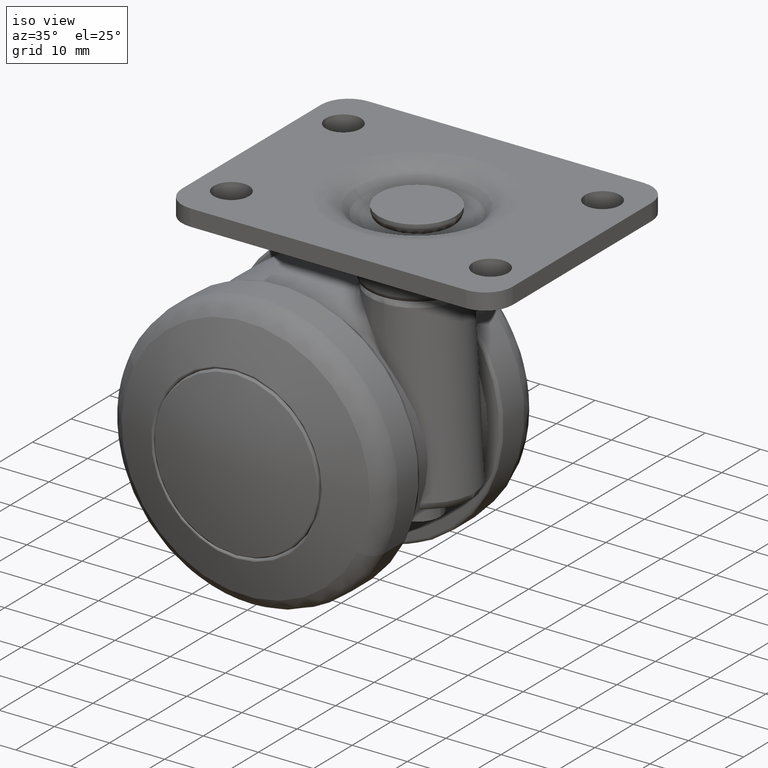
[diagram: clean part render]
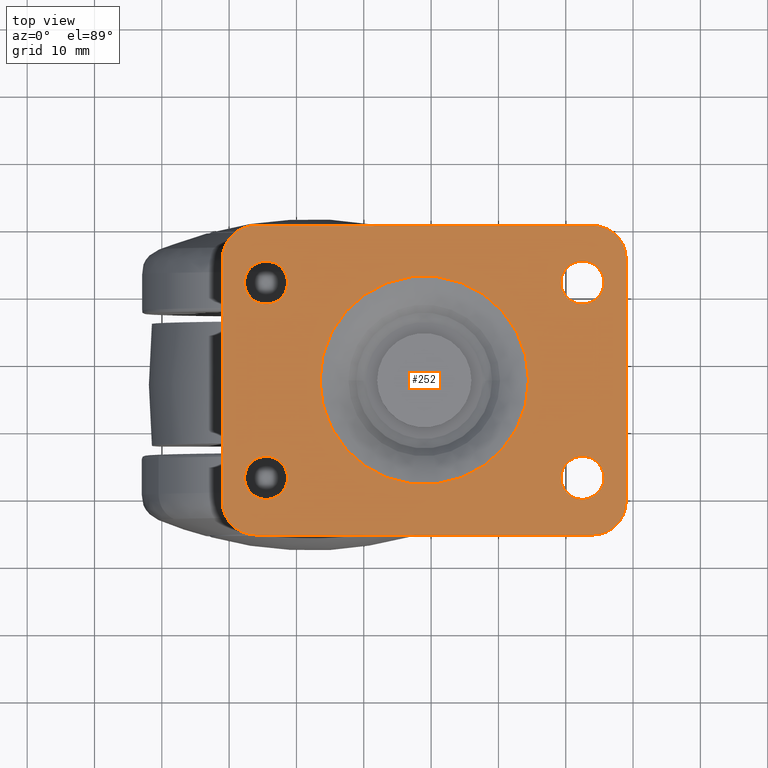
[diagram: tour spotlight — one face highlighted and labeled with its STEP entity id]
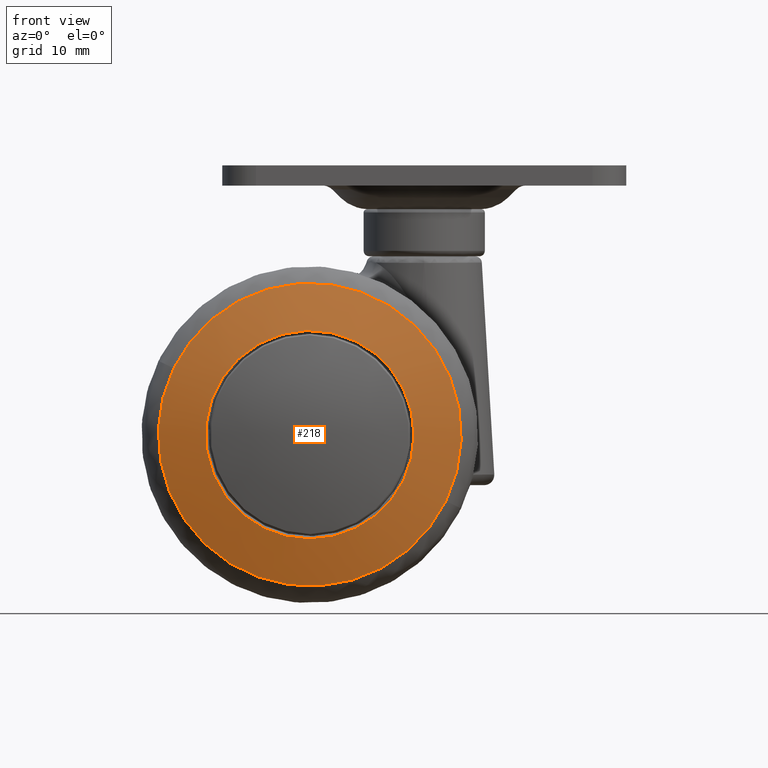
[diagram: tour spotlight — one face highlighted and labeled with its STEP entity id]
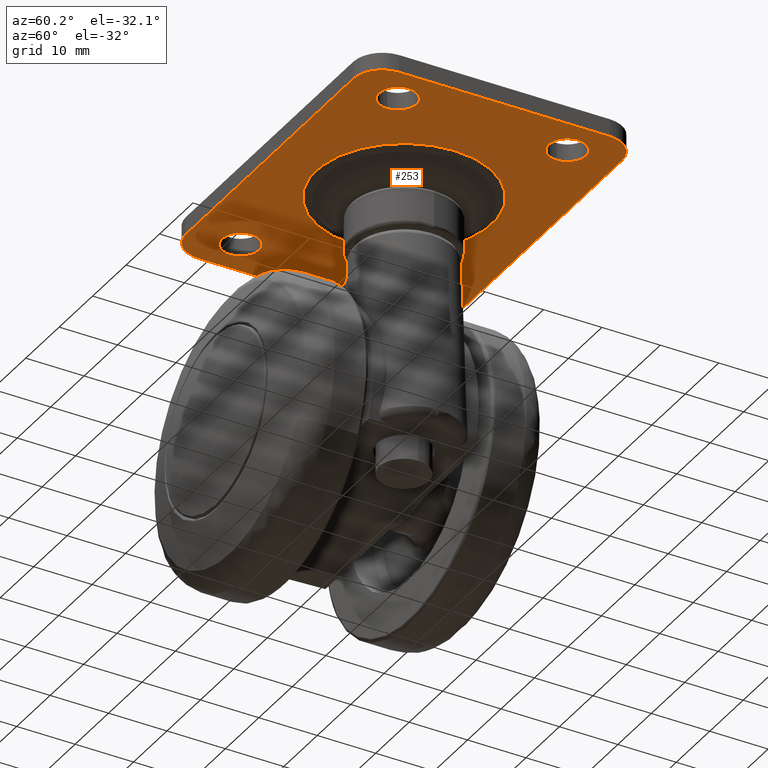
[diagram: tour spotlight — one face highlighted and labeled with its STEP entity id]
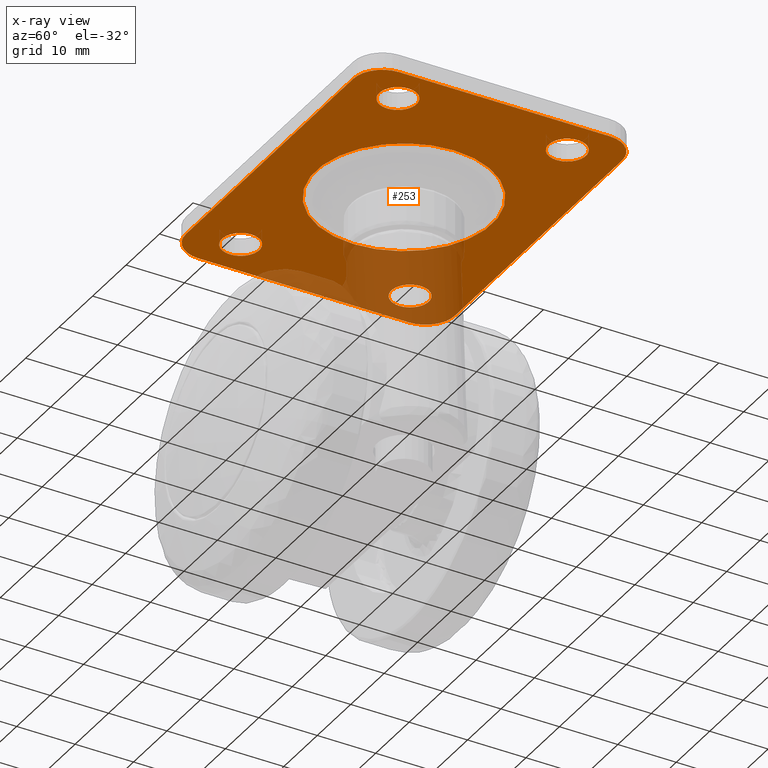
[diagram: x-ray of the same camera — body ghosted, this tour face saturated]
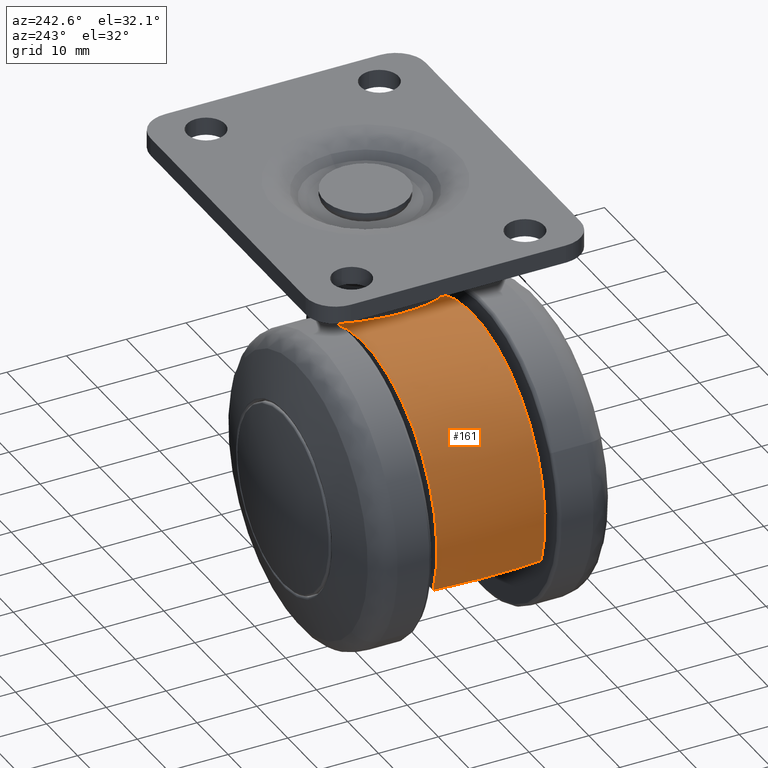
[diagram: tour spotlight — one face highlighted and labeled with its STEP entity id]
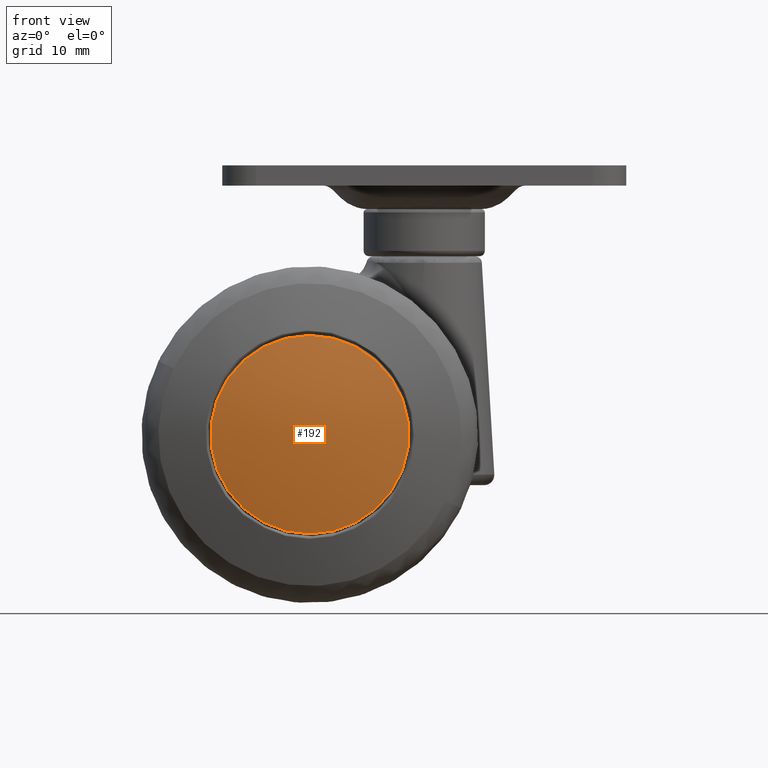
[diagram: tour spotlight — one face highlighted and labeled with its STEP entity id]
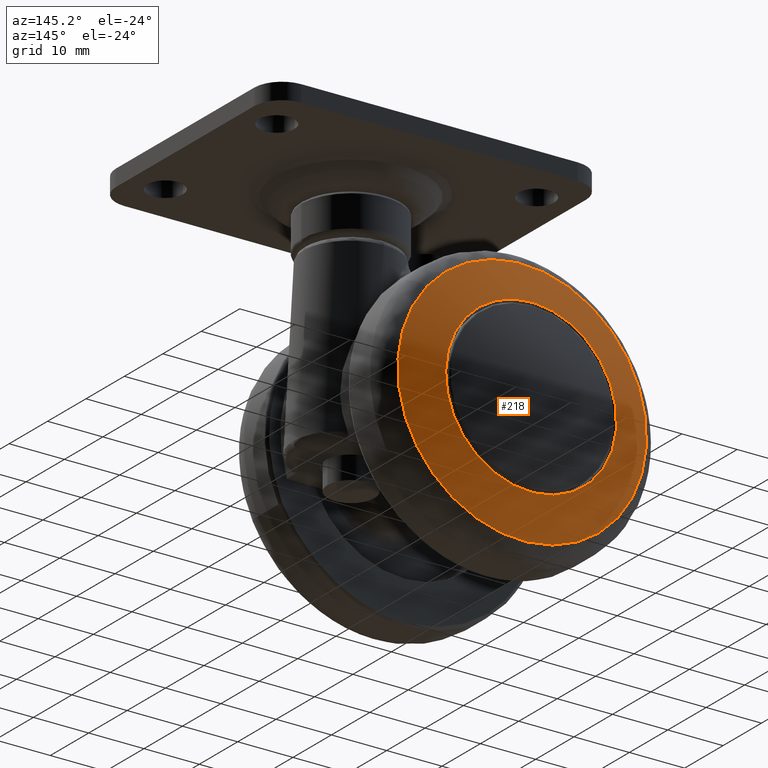
[diagram: tour spotlight — one face highlighted and labeled with its STEP entity id]
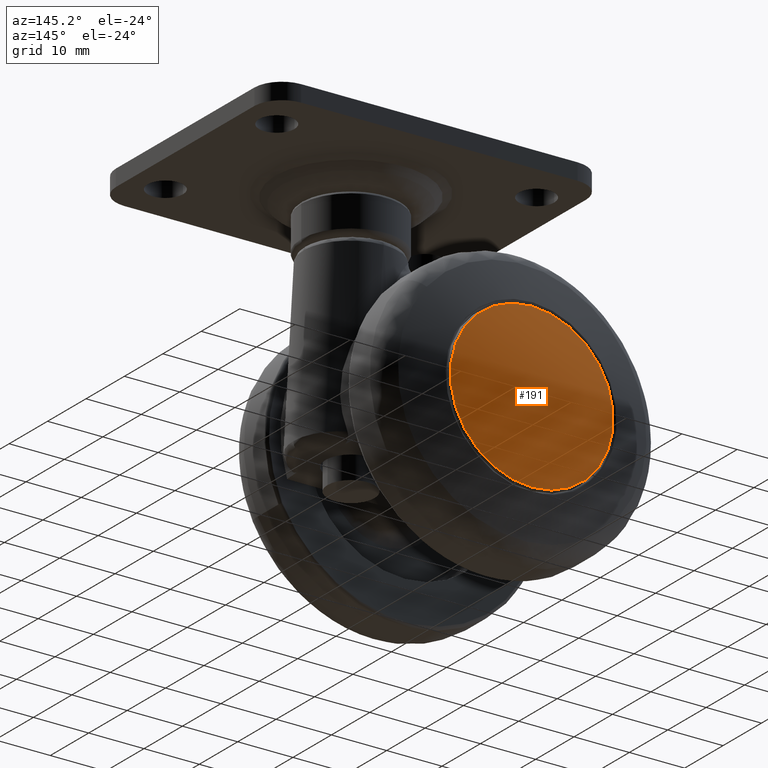
[diagram: tour spotlight — one face highlighted and labeled with its STEP entity id]
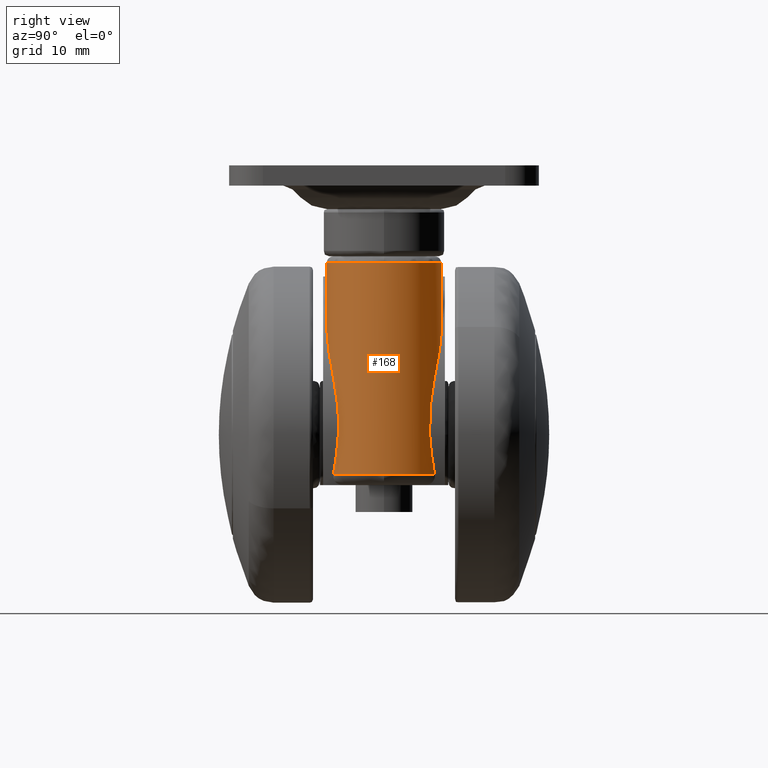
[diagram: tour spotlight — one face highlighted and labeled with its STEP entity id]
A machine part: a face-by-face anatomy tour. The part has 166 B-rep faces; the first image is the clean iso view, then the 8 largest visible faces are spotlighted one at a time (largest first), each with its STEP entity span.

Face 1 — top view, entity #252. In plain terms, the highlighted planar face has unit normal (0, 0, -1).
Definition (entity closure, byte-faithful):
#252=ADVANCED_FACE('',(#1249,#1250,#1251,#1252,#1253,#1254),#1248,.F.);
#1248=PLANE('',#5984);
#1249=FACE_OUTER_BOUND('',#5985,.T.);
#1250=FACE_BOUND('',#5986,.T.);
#1251=FACE_BOUND('',#5987,.T.);
#1252=FACE_BOUND('',#5988,.T.);
#1253=FACE_BOUND('',#5989,.T.);
#1254=FACE_BOUND('',#5990,.T.);
#5981=CARTESIAN_POINT('',(-2.76000000000E+01,0.00000000000E+00,-3.60000000000E+01));
#5982=DIRECTION('',(0.00000000000E+00,1.00000000000E+00,-0.00000000000E+00));
#5983=DIRECTION('',(0.00000000000E+00,0.00000000000E+00,1.00000000000E+00));
#5984=AXIS2_PLACEMENT_3D('',#5981,#5982,#5983);
#5985=EDGE_LOOP('',(#6873,#6874,#6875,#6876,#6877,#6878,#6879,#6880));
#5986=EDGE_LOOP('',(#6881,#6882));
#5987=EDGE_LOOP('',(#6883,#6884));
#5988=EDGE_LOOP('',(#6885,#6886));
#5989=EDGE_LOOP('',(#6887,#6888));
#5990=EDGE_LOOP('',(#6889,#6890));
#6873=ORIENTED_EDGE('',*,*,#7294,.F.);
#6874=ORIENTED_EDGE('',*,*,#7280,.T.);
#6875=ORIENTED_EDGE('',*,*,#7295,.F.);
#6876=ORIENTED_EDGE('',*,*,#7276,.T.);
#6877=ORIENTED_EDGE('',*,*,#7296,.F.);
#6878=ORIENTED_EDGE('',*,*,#7272,.T.);
#6879=ORIENTED_EDGE('',*,*,#7297,.F.);
#6880=ORIENTED_EDGE('',*,*,#7268,.T.);
#6881=ORIENTED_EDGE('',*,*,#7298,.T.);
#6882=ORIENTED_EDGE('',*,*,#7299,.T.);
#6883=ORIENTED_EDGE('',*,*,#7300,.T.);
#6884=ORIENTED_EDGE('',*,*,#7301,.T.);
#6885=ORIENTED_EDGE('',*,*,#7302,.T.);
#6886=ORIENTED_EDGE('',*,*,#7303,.T.);
#6887=ORIENTED_EDGE('',*,*,#7304,.T.);
#6888=ORIENTED_EDGE('',*,*,#7305,.T.);
#6889=ORIENTED_EDGE('',*,*,#7306,.T.);
#6890=ORIENTED_EDGE('',*,*,#7307,.T.);
#7268=EDGE_CURVE('',#8698,#8691,#8699,.T.);
#7272=EDGE_CURVE('',#8726,#8719,#8727,.T.);
#7276=EDGE_CURVE('',#8754,#8747,#8755,.T.);
#7280=EDGE_CURVE('',#8782,#8775,#8783,.T.);
#7294=EDGE_CURVE('',#8782,#8691,#8879,.T.);
#7295=EDGE_CURVE('',#8754,#8775,#8885,.T.);
#7296=EDGE_CURVE('',#8726,#8747,#8891,.T.);
#7297=EDGE_CURVE('',#8698,#8719,#8897,.T.);
#7298=EDGE_CURVE('',#8903,#8904,#8905,.T.);
#7299=EDGE_CURVE('',#8904,#8903,#8911,.T.);
#7300=EDGE_CURVE('',#8917,#8918,#8919,.T.);
#7301=EDGE_CURVE('',#8918,#8917,#8925,.T.);
#7302=EDGE_CURVE('',#8931,#8932,#8933,.T.);
#7303=EDGE_CURVE('',#8932,#8931,#8939,.T.);
#7304=EDGE_CURVE('',#8945,#8946,#8947,.T.);
#7305=EDGE_CURVE('',#8946,#8945,#8953,.T.);
#7306=EDGE_CURVE('',#8959,#8960,#8961,.T.);
#7307=EDGE_CURVE('',#8960,#8959,#8967,.T.);
#8691=VERTEX_POINT('',#10557);
#8698=VERTEX_POINT('',#10561);
#8699=CIRCLE('',#10565,5.00000000000E+00);
#8719=VERTEX_POINT('',#10575);
#8726=VERTEX_POINT('',#10579);
#8727=CIRCLE('',#10583,5.00000000000E+00);
#8747=VERTEX_POINT('',#10593);
#8754=VERTEX_POINT('',#10597);
#8755=CIRCLE('',#10601,5.00000000000E+00);
#8775=VERTEX_POINT('',#10611);
#8782=VERTEX_POINT('',#10615);
#8783=CIRCLE('',#10619,5.00000000000E+00);
#8879=LINE('',#10683,#10684);
#8885=LINE('',#10686,#10687);
#8891=LINE('',#10689,#10690);
#8897=LINE('',#10692,#10693);
#8903=VERTEX_POINT('',#10695);
#8904=VERTEX_POINT('',#10696);
#8905=CIRCLE('',#10700,1.54902689937E+01);
#8911=CIRCLE('',#10704,1.54902689937E+01);
#8917=VERTEX_POINT('',#10705);
#8918=VERTEX_POINT('',#10706);
#8919=CIRCLE('',#10710,3.20000000000E+00);
#8925=CIRCLE('',#10714,3.20000000000E+00);
#8931=VERTEX_POINT('',#10715);
#8932=VERTEX_POINT('',#10716);
#8933=CIRCLE('',#10720,3.20000000000E+00);
#8939=CIRCLE('',#10724,3.20000000000E+00);
#8945=VERTEX_POINT('',#10725);
#8946=VERTEX_POINT('',#10726);
#8947=CIRCLE('',#10730,3.20000000000E+00);
#8953=CIRCLE('',#10734,3.20000000000E+00);
#8959=VERTEX_POINT('',#10735);
#8960=VERTEX_POINT('',#10736);
#8961=CIRCLE('',#10740,3.20000000000E+00);
#8967=CIRCLE('',#10744,3.20000000000E+00);
#10557=CARTESIAN_POINT('',(-2.30000000000E+01,0.00000000000E+00,2.50000000000E+01));
#10561=CARTESIAN_POINT('',(-1.80000000000E+01,0.00000000000E+00,3.00000000000E+01));
#10562=CARTESIAN_POINT('',(-1.80000000000E+01,0.00000000000E+00,2.50000000000E+01));
#10563=DIRECTION('',(0.00000000000E+00,-1.00000000000E+00,0.00000000000E+00));
#10564=DIRECTION('',(-0.00000000000E+00,-0.00000000000E+00,-1.00000000000E+00));
#10565=AXIS2_PLACEMENT_3D('',#10562,#10563,#10564);
#10575=CARTESIAN_POINT('',(1.80000000000E+01,0.00000000000E+00,3.00000000000E+01));
#10579=CARTESIAN_POINT('',(2.30000000000E+01,0.00000000000E+00,2.50000000000E+01));
#10580=CARTESIAN_POINT('',(1.80000000000E+01,0.00000000000E+00,2.50000000000E+01));
#10581=DIRECTION('',(0.00000000000E+00,-1.00000000000E+00,0.00000000000E+00));
#10582=DIRECTION('',(-1.00000000000E+00,-0.00000000000E+00,-0.00000000000E+00));
#10583=AXIS2_PLACEMENT_3D('',#10580,#10581,#10582);
#10593=CARTESIAN_POINT('',(2.30000000000E+01,0.00000000000E+00,-2.50000000000E+01));
#10597=CARTESIAN_POINT('',(1.80000000000E+01,0.00000000000E+00,-3.00000000000E+01));
#10598=CARTESIAN_POINT('',(1.80000000000E+01,0.00000000000E+00,-2.50000000000E+01));
#10599=DIRECTION('',(0.00000000000E+00,-1.00000000000E+00,0.00000000000E+00));
#10600=DIRECTION('',(-0.00000000000E+00,-0.00000000000E+00,1.00000000000E+00));
#10601=AXIS2_PLACEMENT_3D('',#10598,#10599,#10600);
#10611=CARTESIAN_POINT('',(-1.80000000000E+01,0.00000000000E+00,-3.00000000000E+01));
#10615=CARTESIAN_POINT('',(-2.30000000000E+01,0.00000000000E+00,-2.50000000000E+01));
#10616=CARTESIAN_POINT('',(-1.80000000000E+01,0.00000000000E+00,-2.50000000000E+01));
#10617=DIRECTION('',(0.00000000000E+00,-1.00000000000E+00,0.00000000000E+00));
#10618=DIRECTION('',(1.00000000000E+00,-0.00000000000E+00,-0.00000000000E+00));
#10619=AXIS2_PLACEMENT_3D('',#10616,#10617,#10618);
#10683=CARTESIAN_POINT('',(-2.30000000000E+01,0.00000000000E+00,-2.50000000000E+01));
#10684=VECTOR('',#10685,5.00000000000E+01);
#10685=DIRECTION('',(1.42108547152E-16,0.00000000000E+00,1.00000000000E+00));
#10686=CARTESIAN_POINT('',(1.80000000000E+01,0.00000000000E+00,-3.00000000000E+01));
#10687=VECTOR('',#10688,3.60000000000E+01);
#10688=DIRECTION('',(-1.00000000000E+00,0.00000000000E+00,1.97372982156E-16));
#10689=CARTESIAN_POINT('',(2.30000000000E+01,0.00000000000E+00,2.50000000000E+01));
#10690=VECTOR('',#10691,5.00000000000E+01);
#10691=DIRECTION('',(-7.10542735760E-17,0.00000000000E+00,-1.00000000000E+00));
#10692=CARTESIAN_POINT('',(-1.80000000000E+01,0.00000000000E+00,3.00000000000E+01));
#10693=VECTOR('',#10694,3.60000000000E+01);
#10694=DIRECTION('',(1.00000000000E+00,0.00000000000E+00,0.00000000000E+00));
#10695=CARTESIAN_POINT('',(0.00000000000E+00,0.00000000000E+00,1.54902689937E+01));
#10696=CARTESIAN_POINT('',(1.77635683940E-15,0.00000000000E+00,-1.54902689937E+01));
#10697=CARTESIAN_POINT('',(0.00000000000E+00,0.00000000000E+00,6.29580569191E-14));
#10698=DIRECTION('',(0.00000000000E+00,1.00000000000E+00,-0.00000000000E+00));
#10699=DIRECTION('',(-1.22460635382E-16,0.00000000000E+00,1.00000000000E+00));
#10700=AXIS2_PLACEMENT_3D('',#10697,#10698,#10699);
#10701=CARTESIAN_POINT('',(0.00000000000E+00,0.00000000000E+00,6.29580569191E-14));
#10702=DIRECTION('',(0.00000000000E+00,1.00000000000E+00,-0.00000000000E+00));
#10703=DIRECTION('',(-1.22460635382E-16,0.00000000000E+00,1.00000000000E+00));
#10704=AXIS2_PLACEMENT_3D('',#10701,#10702,#10703);
#10705=CARTESIAN_POINT('',(1.45000000000E+01,0.00000000000E+00,2.67000000000E+01));
#10706=CARTESIAN_POINT('',(1.45000000000E+01,0.00000000000E+00,2.03000000000E+01));
#10707=CARTESIAN_POINT('',(1.45000000000E+01,0.00000000000E+00,2.35000000000E+01));
#10708=DIRECTION('',(0.00000000000E+00,1.00000000000E+00,0.00000000000E+00));
#10709=DIRECTION('',(-0.00000000000E+00,-0.00000000000E+00,1.00000000000E+00));
#10710=AXIS2_PLACEMENT_3D('',#10707,#10708,#10709);
#10711=CARTESIAN_POINT('',(1.45000000000E+01,0.00000000000E+00,2.35000000000E+01));
#10712=DIRECTION('',(0.00000000000E+00,1.00000000000E+00,0.00000000000E+00));
#10713=DIRECTION('',(-0.00000000000E+00,-0.00000000000E+00,1.00000000000E+00));
#10714=AXIS2_PLACEMENT_3D('',#10711,#10712,#10713);
#10715=CARTESIAN_POINT('',(-1.45000000000E+01,0.00000000000E+00,2.67000000000E+01));
#10716=CARTESIAN_POINT('',(-1.45000000000E+01,0.00000000000E+00,2.03000000000E+01));
#10717=CARTESIAN_POINT('',(-1.45000000000E+01,0.00000000000E+00,2.35000000000E+01));
#10718=DIRECTION('',(0.00000000000E+00,1.00000000000E+00,0.00000000000E+00));
#10719=DIRECTION('',(-0.00000000000E+00,-0.00000000000E+00,1.00000000000E+00));
#10720=AXIS2_PLACEMENT_3D('',#10717,#10718,#10719);
#10721=CARTESIAN_POINT('',(-1.45000000000E+01,0.00000000000E+00,2.35000000000E+01));
#10722=DIRECTION('',(0.00000000000E+00,1.00000000000E+00,0.00000000000E+00));
#10723=DIRECTION('',(-0.00000000000E+00,-0.00000000000E+00,1.00000000000E+00));
#10724=AXIS2_PLACEMENT_3D('',#10721,#10722,#10723);
#10725=CARTESIAN_POINT('',(1.45000000000E+01,0.00000000000E+00,-2.03000000000E+01));
#10726=CARTESIAN_POINT('',(1.45000000000E+01,0.00000000000E+00,-2.67000000000E+01));
#10727=CARTESIAN_POINT('',(1.45000000000E+01,0.00000000000E+00,-2.35000000000E+01));
#10728=DIRECTION('',(0.00000000000E+00,1.00000000000E+00,0.00000000000E+00));
#10729=DIRECTION('',(-0.00000000000E+00,-0.00000000000E+00,1.00000000000E+00));
#10730=AXIS2_PLACEMENT_3D('',#10727,#10728,#10729);
#10731=CARTESIAN_POINT('',(1.45000000000E+01,0.00000000000E+00,-2.35000000000E+01));
#10732=DIRECTION('',(0.00000000000E+00,1.00000000000E+00,0.00000000000E+00));
#10733=DIRECTION('',(-0.00000000000E+00,-0.00000000000E+00,1.00000000000E+00));
#10734=AXIS2_PLACEMENT_3D('',#10731,#10732,#10733);
#10735=CARTESIAN_POINT('',(-1.45000000000E+01,0.00000000000E+00,-2.03000000000E+01));
#10736=CARTESIAN_POINT('',(-1.45000000000E+01,0.00000000000E+00,-2.67000000000E+01));
#10737=CARTESIAN_POINT('',(-1.45000000000E+01,0.00000000000E+00,-2.35000000000E+01));
#10738=DIRECTION('',(0.00000000000E+00,1.00000000000E+00,0.00000000000E+00));
#10739=DIRECTION('',(-0.00000000000E+00,-0.00000000000E+00,1.00000000000E+00));
#10740=AXIS2_PLACEMENT_3D('',#10737,#10738,#10739);
#10741=CARTESIAN_POINT('',(-1.45000000000E+01,0.00000000000E+00,-2.35000000000E+01));
#10742=DIRECTION('',(0.00000000000E+00,1.00000000000E+00,0.00000000000E+00));
#10743=DIRECTION('',(-0.00000000000E+00,-0.00000000000E+00,1.00000000000E+00));
#10744=AXIS2_PLACEMENT_3D('',#10741,#10742,#10743);

Face 2 — front view, entity #218. In plain terms, the highlighted spherical surface has radius 60 mm.
Definition (entity closure, byte-faithful):
#218=ADVANCED_FACE('',(#905,#906),#904,.T.);
#904=SPHERICAL_SURFACE('',#5558,6.00000000000E+01);
#905=FACE_OUTER_BOUND('',#5559,.T.);
#906=FACE_BOUND('',#5560,.T.);
#5555=CARTESIAN_POINT('',(0.00000000000E+00,6.93889390391E-15,-4.60735605732E+01));
#5556=DIRECTION('',(1.00000000000E+00,0.00000000000E+00,-0.00000000000E+00));
#5557=DIRECTION('',(0.00000000000E+00,3.75000000000E-01,9.27024810887E-01));
#5558=AXIS2_PLACEMENT_3D('',#5555,#5556,#5557);
#5559=EDGE_LOOP('',(#6733,#6734));
#5560=EDGE_LOOP('',(#6735,#6736,#6737));
#6733=ORIENTED_EDGE('',*,*,#7219,.T.);
#6734=ORIENTED_EDGE('',*,*,#7220,.T.);
#6735=ORIENTED_EDGE('',*,*,#7221,.T.);
#6736=ORIENTED_EDGE('',*,*,#7222,.T.);
#6737=ORIENTED_EDGE('',*,*,#7223,.T.);
#7219=EDGE_CURVE('',#8378,#8379,#8380,.T.);
#7220=EDGE_CURVE('',#8379,#8378,#8386,.T.);
#7221=EDGE_CURVE('',#8392,#8393,#8394,.T.);
#7222=EDGE_CURVE('',#8393,#8400,#8401,.T.);
#7223=EDGE_CURVE('',#8400,#8392,#8407,.T.);
#8378=VERTEX_POINT('',#10367);
#8379=VERTEX_POINT('',#10368);
#8380=CIRCLE('',#10372,2.25000000000E+01);
#8386=CIRCLE('',#10376,2.25000000000E+01);
#8392=VERTEX_POINT('',#10377);
#8393=VERTEX_POINT('',#10378);
#8394=CIRCLE('',#10382,1.54773869347E+01);
#8400=VERTEX_POINT('',#10383);
#8401=CIRCLE('',#10387,1.54773869347E+01);
#8407=CIRCLE('',#10391,1.54773869347E+01);
#10367=CARTESIAN_POINT('',(-9.10019811952E-20,2.25000000000E+01,9.54792808004E+00));
#10368=CARTESIAN_POINT('',(2.36847578587E-15,-2.25000000000E+01,9.54792808004E+00));
#10369=CARTESIAN_POINT('',(0.00000000000E+00,1.27226099610E-16,9.54792808004E+00));
#10370=DIRECTION('',(4.33937744018E-33,-1.57898385724E-16,1.00000000000E+00));
#10371=DIRECTION('',(-1.22464679915E-16,1.00000000000E+00,1.57898385724E-16));
#10372=AXIS2_PLACEMENT_3D('',#10369,#10370,#10371);
#10373=CARTESIAN_POINT('',(0.00000000000E+00,1.27226099610E-16,9.54792808004E+00));
#10374=DIRECTION('',(4.33937744018E-33,-1.57898385724E-16,1.00000000000E+00));
#10375=DIRECTION('',(-1.22464679915E-16,1.00000000000E+00,1.57898385724E-16));
#10376=AXIS2_PLACEMENT_3D('',#10373,#10374,#10375);
#10377=CARTESIAN_POINT('',(1.89537063808E-15,-1.54773869347E+01,1.18958321585E+01));
#10378=CARTESIAN_POINT('',(-1.54773868513E+01,1.60625489065E-03,1.18958321585E+01));
#10379=CARTESIAN_POINT('',(0.00000000000E+00,6.93889390391E-15,1.18958321585E+01));
#10380=DIRECTION('',(0.00000000000E+00,0.00000000000E+00,-1.00000000000E+00));
#10381=DIRECTION('',(-0.00000000000E+00,-1.00000000000E+00,-0.00000000000E+00));
#10382=AXIS2_PLACEMENT_3D('',#10379,#10380,#10381);
#10383=CARTESIAN_POINT('',(1.54773869347E+01,-5.13190452001E-10,1.18958321585E+01));
#10384=CARTESIAN_POINT('',(0.00000000000E+00,6.93889390391E-15,1.18958321585E+01));
#10385=DIRECTION('',(0.00000000000E+00,0.00000000000E+00,-1.00000000000E+00));
#10386=DIRECTION('',(-0.00000000000E+00,-1.00000000000E+00,-0.00000000000E+00));
#10387=AXIS2_PLACEMENT_3D('',#10384,#10385,#10386);
#10388=CARTESIAN_POINT('',(0.00000000000E+00,6.93889390391E-15,1.18958321585E+01));
#10389=DIRECTION('',(0.00000000000E+00,0.00000000000E+00,-1.00000000000E+00));
#10390=DIRECTION('',(-0.00000000000E+00,-1.00000000000E+00,-0.00000000000E+00));
#10391=AXIS2_PLACEMENT_3D('',#10388,#10389,#10390);

Face 3 — auxiliary view, entity #253. An x-ray twin of the same camera follows (body ghosted, this face saturated) — the face is partly hidden behind the body. In plain terms, the highlighted planar face has unit normal (0, 0, -1).
Definition (entity closure, byte-faithful):
#253=ADVANCED_FACE('',(#1264,#1265,#1266,#1267,#1268,#1269),#1263,.T.);
#1263=PLANE('',#5994);
#1264=FACE_OUTER_BOUND('',#5995,.T.);
#1265=FACE_BOUND('',#5996,.T.);
#1266=FACE_BOUND('',#5997,.T.);
#1267=FACE_BOUND('',#5998,.T.);
#1268=FACE_BOUND('',#5999,.T.);
#1269=FACE_BOUND('',#6000,.T.);
#5991=CARTESIAN_POINT('',(-2.76000000000E+01,3.00000000000E+00,-3.60000000000E+01));
#5992=DIRECTION('',(0.00000000000E+00,1.00000000000E+00,-0.00000000000E+00));
#5993=DIRECTION('',(0.00000000000E+00,0.00000000000E+00,1.00000000000E+00));
#5994=AXIS2_PLACEMENT_3D('',#5991,#5992,#5993);
#5995=EDGE_LOOP('',(#6891,#6892,#6893,#6894,#6895,#6896,#6897,#6898));
#5996=EDGE_LOOP('',(#6899,#6900));
#5997=EDGE_LOOP('',(#6901,#6902));
#5998=EDGE_LOOP('',(#6903,#6904));
#5999=EDGE_LOOP('',(#6905,#6906));
#6000=EDGE_LOOP('',(#6907,#6908));
#6891=ORIENTED_EDGE('',*,*,#7308,.T.);
#6892=ORIENTED_EDGE('',*,*,#7278,.T.);
#6893=ORIENTED_EDGE('',*,*,#7309,.T.);
#6894=ORIENTED_EDGE('',*,*,#7266,.T.);
#6895=ORIENTED_EDGE('',*,*,#7310,.T.);
#6896=ORIENTED_EDGE('',*,*,#7270,.T.);
#6897=ORIENTED_EDGE('',*,*,#7311,.T.);
#6898=ORIENTED_EDGE('',*,*,#7274,.T.);
#6899=ORIENTED_EDGE('',*,*,#7312,.T.);
#6900=ORIENTED_EDGE('',*,*,#7313,.T.);
#6901=ORIENTED_EDGE('',*,*,#7314,.F.);
#6902=ORIENTED_EDGE('',*,*,#7315,.F.);
#6903=ORIENTED_EDGE('',*,*,#7316,.F.);
#6904=ORIENTED_EDGE('',*,*,#7317,.F.);
#6905=ORIENTED_EDGE('',*,*,#7318,.F.);
#6906=ORIENTED_EDGE('',*,*,#7319,.F.);
#6907=ORIENTED_EDGE('',*,*,#7320,.F.);
#6908=ORIENTED_EDGE('',*,*,#7321,.F.);
#7266=EDGE_CURVE('',#8683,#8684,#8685,.T.);
#7270=EDGE_CURVE('',#8711,#8712,#8713,.T.);
#7274=EDGE_CURVE('',#8739,#8740,#8741,.T.);
#7278=EDGE_CURVE('',#8767,#8768,#8769,.T.);
#7308=EDGE_CURVE('',#8740,#8767,#8973,.T.);
#7309=EDGE_CURVE('',#8768,#8683,#8979,.T.);
#7310=EDGE_CURVE('',#8684,#8711,#8985,.T.);
#7311=EDGE_CURVE('',#8712,#8739,#8991,.T.);
#7312=EDGE_CURVE('',#8997,#8998,#8999,.T.);
#7313=EDGE_CURVE('',#8998,#8997,#9005,.T.);
#7314=EDGE_CURVE('',#9011,#9012,#9013,.T.);
#7315=EDGE_CURVE('',#9012,#9011,#9019,.T.);
#7316=EDGE_CURVE('',#9025,#9026,#9027,.T.);
#7317=EDGE_CURVE('',#9026,#9025,#9033,.T.);
#7318=EDGE_CURVE('',#9039,#9040,#9041,.T.);
#7319=EDGE_CURVE('',#9040,#9039,#9047,.T.);
#7320=EDGE_CURVE('',#9053,#9054,#9055,.T.);
#7321=EDGE_CURVE('',#9054,#9053,#9061,.T.);
#8683=VERTEX_POINT('',#10551);
#8684=VERTEX_POINT('',#10552);
#8685=CIRCLE('',#10556,5.00000000000E+00);
#8711=VERTEX_POINT('',#10569);
#8712=VERTEX_POINT('',#10570);
#8713=CIRCLE('',#10574,5.00000000000E+00);
#8739=VERTEX_POINT('',#10587);
#8740=VERTEX_POINT('',#10588);
#8741=CIRCLE('',#10592,5.00000000000E+00);
#8767=VERTEX_POINT('',#10605);
#8768=VERTEX_POINT('',#10606);
#8769=CIRCLE('',#10610,5.00000000000E+00);
#8973=LINE('',#10745,#10746);
#8979=LINE('',#10748,#10749);
#8985=LINE('',#10751,#10752);
#8991=LINE('',#10754,#10755);
#8997=VERTEX_POINT('',#10757);
#8998=VERTEX_POINT('',#10758);
#8999=CIRCLE('',#10762,1.50767563312E+01);
#9005=CIRCLE('',#10766,1.50767563312E+01);
#9011=VERTEX_POINT('',#10767);
#9012=VERTEX_POINT('',#10768);
#9013=CIRCLE('',#10772,3.20000000000E+00);
#9019=CIRCLE('',#10776,3.20000000000E+00);
#9025=VERTEX_POINT('',#10777);
#9026=VERTEX_POINT('',#10778);
#9027=CIRCLE('',#10782,3.20000000000E+00);
#9033=CIRCLE('',#10786,3.20000000000E+00);
#9039=VERTEX_POINT('',#10787);
#9040=VERTEX_POINT('',#10788);
#9041=CIRCLE('',#10792,3.20000000000E+00);
#9047=CIRCLE('',#10796,3.20000000000E+00);
#9053=VERTEX_POINT('',#10797);
#9054=VERTEX_POINT('',#10798);
#9055=CIRCLE('',#10802,3.20000000000E+00);
#9061=CIRCLE('',#10806,3.20000000000E+00);
#10551=CARTESIAN_POINT('',(-2.30000000000E+01,3.00000000000E+00,2.50000000000E+01));
#10552=CARTESIAN_POINT('',(-1.80000000000E+01,3.00000000000E+00,3.00000000000E+01));
#10553=CARTESIAN_POINT('',(-1.80000000000E+01,3.00000000000E+00,2.50000000000E+01));
#10554=DIRECTION('',(0.00000000000E+00,1.00000000000E+00,0.00000000000E+00));
#10555=DIRECTION('',(1.00000000000E+00,-0.00000000000E+00,-0.00000000000E+00));
#10556=AXIS2_PLACEMENT_3D('',#10553,#10554,#10555);
#10569=CARTESIAN_POINT('',(1.80000000000E+01,3.00000000000E+00,3.00000000000E+01));
#10570=CARTESIAN_POINT('',(2.30000000000E+01,3.00000000000E+00,2.50000000000E+01));
#10571=CARTESIAN_POINT('',(1.80000000000E+01,3.00000000000E+00,2.50000000000E+01));
#10572=DIRECTION('',(0.00000000000E+00,1.00000000000E+00,0.00000000000E+00));
#10573=DIRECTION('',(7.10542735760E-16,-0.00000000000E+00,-1.00000000000E+00));
#10574=AXIS2_PLACEMENT_3D('',#10571,#10572,#10573);
#10587=CARTESIAN_POINT('',(2.30000000000E+01,3.00000000000E+00,-2.50000000000E+01));
#10588=CARTESIAN_POINT('',(1.80000000000E+01,3.00000000000E+00,-3.00000000000E+01));
#10589=CARTESIAN_POINT('',(1.80000000000E+01,3.00000000000E+00,-2.50000000000E+01));
#10590=DIRECTION('',(0.00000000000E+00,1.00000000000E+00,-0.00000000000E+00));
#10591=DIRECTION('',(-1.00000000000E+00,-0.00000000000E+00,-0.00000000000E+00));
#10592=AXIS2_PLACEMENT_3D('',#10589,#10590,#10591);
#10605=CARTESIAN_POINT('',(-1.80000000000E+01,3.00000000000E+00,-3.00000000000E+01));
#10606=CARTESIAN_POINT('',(-2.30000000000E+01,3.00000000000E+00,-2.50000000000E+01));
#10607=CARTESIAN_POINT('',(-1.80000000000E+01,3.00000000000E+00,-2.50000000000E+01));
#10608=DIRECTION('',(0.00000000000E+00,1.00000000000E+00,0.00000000000E+00));
#10609=DIRECTION('',(-0.00000000000E+00,-0.00000000000E+00,1.00000000000E+00));
#10610=AXIS2_PLACEMENT_3D('',#10607,#10608,#10609);
#10745=CARTESIAN_POINT('',(1.80000000000E+01,3.00000000000E+00,-3.00000000000E+01));
#10746=VECTOR('',#10747,3.60000000000E+01);
#10747=DIRECTION('',(-1.00000000000E+00,0.00000000000E+00,1.97372982156E-16));
#10748=CARTESIAN_POINT('',(-2.30000000000E+01,3.00000000000E+00,-2.50000000000E+01));
#10749=VECTOR('',#10750,5.00000000000E+01);
#10750=DIRECTION('',(1.42108547152E-16,0.00000000000E+00,1.00000000000E+00));
#10751=CARTESIAN_POINT('',(-1.80000000000E+01,3.00000000000E+00,3.00000000000E+01));
#10752=VECTOR('',#10753,3.60000000000E+01);
#10753=DIRECTION('',(1.00000000000E+00,0.00000000000E+00,0.00000000000E+00));
#10754=CARTESIAN_POINT('',(2.30000000000E+01,3.00000000000E+00,2.50000000000E+01));
#10755=VECTOR('',#10756,5.00000000000E+01);
#10756=DIRECTION('',(-7.10542735760E-17,0.00000000000E+00,-1.00000000000E+00));
#10757=CARTESIAN_POINT('',(0.00000000000E+00,3.00000000000E+00,1.50767563312E+01));
#10758=CARTESIAN_POINT('',(-1.77635683940E-15,3.00000000000E+00,-1.50767563312E+01));
#10759=CARTESIAN_POINT('',(0.00000000000E+00,3.00000000000E+00,6.61715733810E-14));
#10760=DIRECTION('',(0.00000000000E+00,-1.00000000000E+00,0.00000000000E+00));
#10761=DIRECTION('',(1.22460635382E-16,0.00000000000E+00,1.00000000000E+00));
#10762=AXIS2_PLACEMENT_3D('',#10759,#10760,#10761);
#10763=CARTESIAN_POINT('',(0.00000000000E+00,3.00000000000E+00,6.61715733810E-14));
#10764=DIRECTION('',(0.00000000000E+00,-1.00000000000E+00,0.00000000000E+00));
#10765=DIRECTION('',(1.22460635382E-16,0.00000000000E+00,1.00000000000E+00));
#10766=AXIS2_PLACEMENT_3D('',#10763,#10764,#10765);
#10767=CARTESIAN_POINT('',(1.45000000000E+01,3.00000000000E+00,2.03000000000E+01));
#10768=CARTESIAN_POINT('',(1.45000000000E+01,3.00000000000E+00,2.67000000000E+01));
#10769=CARTESIAN_POINT('',(1.45000000000E+01,3.00000000000E+00,2.35000000000E+01));
#10770=DIRECTION('',(0.00000000000E+00,1.00000000000E+00,0.00000000000E+00));
#10771=DIRECTION('',(-0.00000000000E+00,-0.00000000000E+00,1.00000000000E+00));
#10772=AXIS2_PLACEMENT_3D('',#10769,#10770,#10771);
#10773=CARTESIAN_POINT('',(1.45000000000E+01,3.00000000000E+00,2.35000000000E+01));
#10774=DIRECTION('',(0.00000000000E+00,1.00000000000E+00,0.00000000000E+00));
#10775=DIRECTION('',(-0.00000000000E+00,-0.00000000000E+00,1.00000000000E+00));
#10776=AXIS2_PLACEMENT_3D('',#10773,#10774,#10775);
#10777=CARTESIAN_POINT('',(-1.45000000000E+01,3.00000000000E+00,2.03000000000E+01));
#10778=CARTESIAN_POINT('',(-1.45000000000E+01,3.00000000000E+00,2.67000000000E+01));
#10779=CARTESIAN_POINT('',(-1.45000000000E+01,3.00000000000E+00,2.35000000000E+01));
#10780=DIRECTION('',(0.00000000000E+00,1.00000000000E+00,0.00000000000E+00));
#10781=DIRECTION('',(-0.00000000000E+00,-0.00000000000E+00,1.00000000000E+00));
#10782=AXIS2_PLACEMENT_3D('',#10779,#10780,#10781);
#10783=CARTESIAN_POINT('',(-1.45000000000E+01,3.00000000000E+00,2.35000000000E+01));
#10784=DIRECTION('',(0.00000000000E+00,1.00000000000E+00,0.00000000000E+00));
#10785=DIRECTION('',(-0.00000000000E+00,-0.00000000000E+00,1.00000000000E+00));
#10786=AXIS2_PLACEMENT_3D('',#10783,#10784,#10785);
#10787=CARTESIAN_POINT('',(1.45000000000E+01,3.00000000000E+00,-2.67000000000E+01));
#10788=CARTESIAN_POINT('',(1.45000000000E+01,3.00000000000E+00,-2.03000000000E+01));
#10789=CARTESIAN_POINT('',(1.45000000000E+01,3.00000000000E+00,-2.35000000000E+01));
#10790=DIRECTION('',(0.00000000000E+00,1.00000000000E+00,0.00000000000E+00));
#10791=DIRECTION('',(-0.00000000000E+00,-0.00000000000E+00,1.00000000000E+00));
#10792=AXIS2_PLACEMENT_3D('',#10789,#10790,#10791);
#10793=CARTESIAN_POINT('',(1.45000000000E+01,3.00000000000E+00,-2.35000000000E+01));
#10794=DIRECTION('',(0.00000000000E+00,1.00000000000E+00,0.00000000000E+00));
#10795=DIRECTION('',(-0.00000000000E+00,-0.00000000000E+00,1.00000000000E+00));
#10796=AXIS2_PLACEMENT_3D('',#10793,#10794,#10795);
#10797=CARTESIAN_POINT('',(-1.45000000000E+01,3.00000000000E+00,-2.67000000000E+01));
#10798=CARTESIAN_POINT('',(-1.45000000000E+01,3.00000000000E+00,-2.03000000000E+01));
#10799=CARTESIAN_POINT('',(-1.45000000000E+01,3.00000000000E+00,-2.35000000000E+01));
#10800=DIRECTION('',(0.00000000000E+00,1.00000000000E+00,0.00000000000E+00));
#10801=DIRECTION('',(-0.00000000000E+00,-0.00000000000E+00,1.00000000000E+00));
#10802=AXIS2_PLACEMENT_3D('',#10799,#10800,#10801);
#10803=CARTESIAN_POINT('',(-1.45000000000E+01,3.00000000000E+00,-2.35000000000E+01));
#10804=DIRECTION('',(0.00000000000E+00,1.00000000000E+00,0.00000000000E+00));
#10805=DIRECTION('',(-0.00000000000E+00,-0.00000000000E+00,1.00000000000E+00));
#10806=AXIS2_PLACEMENT_3D('',#10803,#10804,#10805);

Face 4 — auxiliary view, entity #161. In plain terms, the highlighted face is a freeform B-spline surface patch.
Definition (entity closure, byte-faithful):
#161=ADVANCED_FACE('',(#326),#325,.T.);
#325=( BOUNDED_SURFACE() B_SPLINE_SURFACE( 2,2,((#1736,#1737,#1738,#1739,#1740),(#1741,#1742,#1743,#1744,#1745),(#1746,#1747,#1748,#1749,#1750)), .UNSPECIFIED.,.F.,.F.,.F.) B_SPLINE_SURFACE_WITH_KNOTS((3,3),(3,2,3),(-9.06321498461E-02,9.06411708070E-02),(2.00286155755E+00,3.14159265359E+00,4.29593531224E+00), .UNSPECIFIED. ) GEOMETRIC_REPRESENTATION_ITEM() RATIONAL_B_SPLINE_SURFACE(((8.83192680489E-01,7.87670361591E-01,1.00000000000E+00,7.84759404425E-01,8.85869690384E-01),(8.79567447497E-01,7.84437218195E-01,9.95895309061E-01,7.81538209609E-01,8.82233469093E-01),(8.83192680489E-01,7.87670361591E-01,1.00000000000E+00,7.84759404425E-01,8.85869690384E-01))) REPRESENTATION_ITEM('') SURFACE() );
#326=FACE_OUTER_BOUND('',#1751,.T.);
#1736=CARTESIAN_POINT('',(-2.22709874961E+01,9.05081225646E+00,-7.49997644188E+00));
#1737=CARTESIAN_POINT('',(-2.71519076207E+01,9.05081225646E+00,6.99379055952E+00));
#1738=CARTESIAN_POINT('',(-1.58763200100E+01,9.05081225646E+00,1.73259629926E+01));
#1739=CARTESIAN_POINT('',(-4.40374980644E+00,9.05081225646E+00,2.78386367162E+01));
#1740=CARTESIAN_POINT('',(9.75343860165E+00,9.05081225646E+00,2.13802938736E+01));
#1741=CARTESIAN_POINT('',(-2.30505589997E+01,-4.52907085944E-04,-7.76250489567E+00));
#1742=CARTESIAN_POINT('',(-2.81023303828E+01,-4.52907085938E-04,7.23860053139E+00));
#1743=CARTESIAN_POINT('',(-1.64320531881E+01,-4.52907085924E-04,1.79324393342E+01));
#1744=CARTESIAN_POINT('',(-4.55789824098E+00,-4.52907085910E-04,2.88130976774E+01));
#1745=CARTESIAN_POINT('',(1.00948470281E+01,-4.52907085905E-04,2.21286876234E+01));
#1746=CARTESIAN_POINT('',(-2.22709101150E+01,-9.05171064972E+00,-7.49995038303E+00));
#1747=CARTESIAN_POINT('',(-2.71518132807E+01,-9.05171064972E+00,6.99376625942E+00));
#1748=CARTESIAN_POINT('',(-1.58762648473E+01,-9.05171064972E+00,1.73259027931E+01));
#1749=CARTESIAN_POINT('',(-4.40373450551E+00,-9.05171064972E+00,2.78385399902E+01));
#1750=CARTESIAN_POINT('',(9.75340471308E+00,-9.05171064972E+00,2.13802195873E+01));
#1751=EDGE_LOOP('',(#6464,#6465,#6466,#6467,#6468,#6469,#6470));
#6464=ORIENTED_EDGE('',*,*,#7082,.T.);
#6465=ORIENTED_EDGE('',*,*,#7083,.T.);
#6466=ORIENTED_EDGE('',*,*,#7084,.T.);
#6467=ORIENTED_EDGE('',*,*,#7085,.T.);
#6468=ORIENTED_EDGE('',*,*,#7086,.T.);
#6469=ORIENTED_EDGE('',*,*,#7087,.F.);
#6470=ORIENTED_EDGE('',*,*,#7088,.T.);
#7082=EDGE_CURVE('',#7469,#7470,#7471,.T.);
#7083=EDGE_CURVE('',#7470,#7477,#7478,.T.);
#7084=EDGE_CURVE('',#7477,#7484,#7485,.T.);
#7085=EDGE_CURVE('',#7484,#7491,#7492,.T.);
#7086=EDGE_CURVE('',#7491,#7498,#7499,.T.);
#7087=EDGE_CURVE('',#7505,#7498,#7506,.T.);
#7088=EDGE_CURVE('',#7505,#7469,#7512,.T.);
#7469=VERTEX_POINT('',#9510);
#7470=VERTEX_POINT('',#9511);
#7471=CIRCLE('',#9515,2.35000000000E+01);
#7477=VERTEX_POINT('',#9516);
#7478=(BOUNDED_CURVE() B_SPLINE_CURVE(3,(#9517,#9518,#9519,#9520,#9521,#9522,#9523,#9524,#9525,#9526,#9527,#9528,#9529,#9530,#9531,#9532,#9533),.UNSPECIFIED.,.F.,.F.) B_SPLINE_CURVE_WITH_KNOTS((4,2,2,1,2,2,2,2,4),(0.00000000000E+00,2.50000000000E-01,3.75000000000E-01,4.37500000000E-01,4.68750000000E-01,5.00000000000E-01,6.25000000000E-01,7.50000000000E-01,1.00000000000E+00),.UNSPECIFIED.) CURVE() GEOMETRIC_REPRESENTATION_ITEM() RATIONAL_B_SPLINE_CURVE((1.00000000000E+00,1.00000000000E+00,1.00000000000E+00,1.00000000000E+00,1.00000000000E+00,1.00000000000E+00,1.00000000000E+00,1.00000000000E+00,1.00000000000E+00,1.00000000000E+00,1.00000000000E+00,1.00000000000E+00,1.00000000000E+00,1.00000000000E+00,1.00000000000E+00,1.00000000000E+00,1.00000000000E+00)) REPRESENTATION_ITEM('') );
#7484=VERTEX_POINT('',#9534);
#7485=(BOUNDED_CURVE() B_SPLINE_CURVE(3,(#9535,#9536,#9537,#9538,#9539,#9540,#9541,#9542,#9543,#9544,#9545,#9546,#9547,#9548,#9549,#9550,#9551,#9552,#9553),.UNSPECIFIED.,.F.,.F.) B_SPLINE_CURVE_WITH_KNOTS((4,2,2,2,2,1,2,2,2,4),(0.00000000000E+00,1.25000000000E-01,1.87500000000E-01,2.50000000000E-01,3.75000000000E-01,4.37500000000E-01,4.68750000000E-01,5.00000000000E-01,7.50000000000E-01,1.00000000000E+00),.UNSPECIFIED.) CURVE() GEOMETRIC_REPRESENTATION_ITEM() RATIONAL_B_SPLINE_CURVE((1.00000000000E+00,1.00000000000E+00,1.00000000000E+00,1.00000000000E+00,1.00000000000E+00,1.00000000000E+00,1.00000000000E+00,1.00000000000E+00,1.00000000000E+00,1.00000000000E+00,1.00000000000E+00,1.00000000000E+00,1.00000000000E+00,1.00000000000E+00,1.00000000000E+00,1.00000000000E+00,1.00000000000E+00,1.00000000000E+00,1.00000000000E+00)) REPRESENTATION_ITEM('') );
#7491=VERTEX_POINT('',#9554);
#7492=(BOUNDED_CURVE() B_SPLINE_CURVE(3,(#9555,#9556,#9557,#9558,#9559,#9560,#9561,#9562,#9563,#9564,#9565,#9566,#9567,#9568,#9569,#9570,#9571,#9572,#9573,#9574,#9575),.UNSPECIFIED.,.F.,.F.) B_SPLINE_CURVE_WITH_KNOTS((4,2,2,2,2,2,2,1,2,2,4),(0.00000000000E+00,1.25000000000E-01,1.87500000000E-01,2.50000000000E-01,3.75000000000E-01,5.00000000000E-01,6.25000000000E-01,6.87500000000E-01,7.18750000000E-01,7.50000000000E-01,1.00000000000E+00),.UNSPECIFIED.) CURVE() GEOMETRIC_REPRESENTATION_ITEM() RATIONAL_B_SPLINE_CURVE((1.00000000000E+00,1.00000000000E+00,1.00000000000E+00,1.00000000000E+00,1.00000000000E+00,1.00000000000E+00,1.00000000000E+00,1.00000000000E+00,1.00000000000E+00,1.00000000000E+00,1.00000000000E+00,1.00000000000E+00,1.00000000000E+00,1.00000000000E+00,1.00000000000E+00,1.00000000000E+00,1.00000000000E+00,1.00000000000E+00,1.00000000000E+00,1.00000000000E+00,1.00000000000E+00)) REPRESENTATION_ITEM('') );
#7498=VERTEX_POINT('',#9576);
#7499=(BOUNDED_CURVE() B_SPLINE_CURVE(3,(#9577,#9578,#9579,#9580,#9581,#9582,#9583,#9584,#9585,#9586,#9587,#9588,#9589,#9590),.UNSPECIFIED.,.F.,.F.) B_SPLINE_CURVE_WITH_KNOTS((4,2,2,1,1,2,2,4),(0.00000000000E+00,2.50000000000E-01,3.75000000000E-01,4.37500000000E-01,4.68750000000E-01,4.84375000000E-01,5.00000000000E-01,1.00000000000E+00),.UNSPECIFIED.) CURVE() GEOMETRIC_REPRESENTATION_ITEM() RATIONAL_B_SPLINE_CURVE((1.00000000000E+00,1.00000000000E+00,1.00000000000E+00,1.00000000000E+00,1.00000000000E+00,1.00000000000E+00,1.00000000000E+00,1.00000000000E+00,1.00000000000E+00,1.00000000000E+00,1.00000000000E+00,1.00000000000E+00,1.00000000000E+00,1.00000000000E+00)) REPRESENTATION_ITEM('') );
#7505=VERTEX_POINT('',#9591);
#7506=CIRCLE('',#9595,2.35000000000E+01);
#7512=(BOUNDED_CURVE() B_SPLINE_CURVE(3,(#9596,#9597,#9598,#9599,#9600,#9601,#9602,#9603),.UNSPECIFIED.,.F.,.F.) B_SPLINE_CURVE_WITH_KNOTS((4,2,2,4),(1.14837200400E-01,1.23898811634E-01,1.28429617251E-01,1.32960422868E-01),.UNSPECIFIED.) CURVE() GEOMETRIC_REPRESENTATION_ITEM() RATIONAL_B_SPLINE_CURVE((1.00000000000E+00,1.00000000000E+00,1.00000000000E+00,1.00000000000E+00,1.00000000000E+00,1.00000000000E+00,1.00000000000E+00,1.00000000000E+00)) REPRESENTATION_ITEM('') );
#9510=CARTESIAN_POINT('',(-2.22710574513E+01,-9.05000000000E+00,-7.50000000000E+00));
#9511=CARTESIAN_POINT('',(9.75346923810E+00,-9.05000000000E+00,2.13803610311E+01));
#9512=CARTESIAN_POINT('',(0.00000000000E+00,-9.05000000000E+00,0.00000000000E+00));
#9513=DIRECTION('',(0.00000000000E+00,1.00000000000E+00,0.00000000000E+00));
#9514=DIRECTION('',(9.47704572397E-01,-0.00000000000E+00,3.19148936170E-01));
#9515=AXIS2_PLACEMENT_3D('',#9512,#9513,#9514);
#9516=CARTESIAN_POINT('',(6.49827822247E+00,-6.09941437944E+00,2.28168462474E+01));
#9517=CARTESIAN_POINT('',(9.75346923810E+00,-9.05000000000E+00,2.13803610311E+01));
#9518=CARTESIAN_POINT('',(9.42882925959E+00,-8.90700046714E+00,2.15427410508E+01));
#9519=CARTESIAN_POINT('',(9.11655334750E+00,-8.73931969357E+00,2.16924024320E+01));
#9520=CARTESIAN_POINT('',(8.66806003913E+00,-8.45073101092E+00,2.19002486087E+01));
#9521=CARTESIAN_POINT('',(8.52187906842E+00,-8.34835676503E+00,2.19667522623E+01));
#9522=CARTESIAN_POINT('',(8.30772805308E+00,-8.18552189356E+00,2.20626061291E+01));
#9523=CARTESIAN_POINT('',(8.20193240362E+00,-8.10178607657E+00,2.21095572534E+01));
#9524=CARTESIAN_POINT('',(8.09808162338E+00,-8.01457143363E+00,2.21550908244E+01));
#9525=CARTESIAN_POINT('',(8.02928261123E+00,-7.95565512467E+00,2.21851363952E+01));
#9526=CARTESIAN_POINT('',(7.99638418034E+00,-7.92695296380E+00,2.21994479636E+01));
#9527=CARTESIAN_POINT('',(7.82014919543E+00,-7.77008276857E+00,2.22758040324E+01));
#9528=CARTESIAN_POINT('',(7.68363322050E+00,-7.63840523375E+00,2.23339679594E+01));
#9529=CARTESIAN_POINT('',(7.41975945907E+00,-7.36267816081E+00,2.24448569767E+01));
#9530=CARTESIAN_POINT('',(7.29340989969E+00,-7.21986341433E+00,2.24971696634E+01));
#9531=CARTESIAN_POINT('',(6.92233326263E+00,-6.76543883021E+00,2.26489540553E+01));
#9532=CARTESIAN_POINT('',(6.69823407782E+00,-6.44245514063E+00,2.27381023764E+01));
#9533=CARTESIAN_POINT('',(6.49827822247E+00,-6.09941437944E+00,2.28168462474E+01));
#9534=CARTESIAN_POINT('',(4.91457002754E+00,-1.18250920685E-14,2.33998301608E+01));
#9535=CARTESIAN_POINT('',(6.49827822247E+00,-6.09941437944E+00,2.28168462474E+01));
#9536=CARTESIAN_POINT('',(6.36992188780E+00,-5.87920849807E+00,2.28673937778E+01));
#9537=CARTESIAN_POINT('',(6.24847871899E+00,-5.65226737484E+00,2.29144051274E+01));
#9538=CARTESIAN_POINT('',(6.07688981769E+00,-5.30174889636E+00,2.29799396525E+01));
#9539=CARTESIAN_POINT('',(6.02145582103E+00,-5.18322495941E+00,2.30009533377E+01));
#9540=CARTESIAN_POINT('',(5.91414282710E+00,-4.94280782367E+00,2.30413630526E+01));
#9541=CARTESIAN_POINT('',(5.86154682751E+00,-4.81914561396E+00,2.30610254352E+01));
#9542=CARTESIAN_POINT('',(5.71343507694E+00,-4.45371890821E+00,2.31160458906E+01));
#9543=CARTESIAN_POINT('',(5.62241231888E+00,-4.20539401115E+00,2.31493817956E+01));
#9544=CARTESIAN_POINT('',(5.49762634004E+00,-3.82584960384E+00,2.31946373438E+01));
#9545=CARTESIAN_POINT('',(5.43816981423E+00,-3.63431316695E+00,2.32160768419E+01));
#9546=CARTESIAN_POINT('',(5.38314482672E+00,-3.44013135647E+00,2.32357732888E+01));
#9547=CARTESIAN_POINT('',(5.34744892051E+00,-3.31008908610E+00,2.32485205180E+01));
#9548=CARTESIAN_POINT('',(5.32970568214E+00,-3.24326022724E+00,2.32548405497E+01));
#9549=CARTESIAN_POINT('',(5.18147358422E+00,-2.66640576482E+00,2.33075209239E+01));
#9550=CARTESIAN_POINT('',(5.08160493906E+00,-2.14095192332E+00,2.33422249392E+01));
#9551=CARTESIAN_POINT('',(4.94804572613E+00,-1.07588437060E+00,2.33884134607E+01));
#9552=CARTESIAN_POINT('',(4.91457002890E+00,-5.39722330058E-01,2.33998301605E+01));
#9553=CARTESIAN_POINT('',(4.91457002754E+00,-1.18250920685E-14,2.33998301608E+01));
#9554=CARTESIAN_POINT('',(6.49827822248E+00,6.09941437946E+00,2.28168462474E+01));
#9555=CARTESIAN_POINT('',(4.91457002754E+00,-1.18250920685E-14,2.33998301608E+01));
#9556=CARTESIAN_POINT('',(4.91457002803E+00,2.70429459744E-01,2.33998301607E+01));
#9557=CARTESIAN_POINT('',(4.92296855633E+00,5.39971460147E-01,2.33969503171E+01));
#9558=CARTESIAN_POINT('',(4.94815117729E+00,9.42940183896E-01,2.33883017937E+01));
#9559=CARTESIAN_POINT('',(4.95864244801E+00,1.07703905111E+00,2.33846966446E+01));
#9560=CARTESIAN_POINT('',(4.98381206227E+00,1.34478658773E+00,2.33760300694E+01));
#9561=CARTESIAN_POINT('',(4.99834103291E+00,1.47724660298E+00,2.33710203033E+01));
#9562=CARTESIAN_POINT('',(5.04908929878E+00,1.88108016662E+00,2.33534690047E+01));
#9563=CARTESIAN_POINT('',(5.09119900113E+00,2.14756941237E+00,2.33388479332E+01));
#9564=CARTESIAN_POINT('',(5.19187083289E+00,2.67506722580E+00,2.33036243450E+01));
#9565=CARTESIAN_POINT('',(5.24994593717E+00,2.93419026773E+00,2.32831949356E+01));
#9566=CARTESIAN_POINT('',(5.38434298650E+00,3.45448535965E+00,2.32354139486E+01));
#9567=CARTESIAN_POINT('',(5.45933678941E+00,3.71001218769E+00,2.32085310793E+01));
#9568=CARTESIAN_POINT('',(5.58338867045E+00,4.08636574553E+00,2.31635307248E+01));
#9569=CARTESIAN_POINT('',(5.64830436508E+00,4.27280838855E+00,2.31398603460E+01));
#9570=CARTESIAN_POINT('',(5.71752505403E+00,4.45664908047E+00,2.31143888533E+01));
#9571=CARTESIAN_POINT('',(5.76462520597E+00,4.57863126728E+00,2.30970017916E+01));
#9572=CARTESIAN_POINT('',(5.78813990116E+00,4.63807100730E+00,2.30882954414E+01));
#9573=CARTESIAN_POINT('',(6.01325837696E+00,5.19314604206E+00,2.30046607799E+01));
#9574=CARTESIAN_POINT('',(6.24197043953E+00,5.65969723125E+00,2.29177818616E+01));
#9575=CARTESIAN_POINT('',(6.49827822248E+00,6.09941437946E+00,2.28168462474E+01));
#9576=CARTESIAN_POINT('',(9.74977770731E+00,9.05000000000E+00,2.13820446791E+01));
#9577=CARTESIAN_POINT('',(6.49827822248E+00,6.09941437946E+00,2.28168462474E+01));
#9578=CARTESIAN_POINT('',(6.69929631440E+00,6.44427749619E+00,2.27376840609E+01));
#9579=CARTESIAN_POINT('',(6.92213445100E+00,6.76635361082E+00,2.26488948758E+01));
#9580=CARTESIAN_POINT('',(7.28802595705E+00,7.21532979722E+00,2.24992453767E+01));
#9581=CARTESIAN_POINT('',(7.41525915049E+00,7.35929897193E+00,2.24466105075E+01));
#9582=CARTESIAN_POINT('',(7.61384612516E+00,7.56672443773E+00,2.23632120274E+01));
#9583=CARTESIAN_POINT('',(7.71507357542E+00,7.66830510187E+00,2.23204005718E+01));
#9584=CARTESIAN_POINT('',(7.83651649722E+00,7.78308611899E+00,2.22684307907E+01));
#9585=CARTESIAN_POINT('',(7.88927552523E+00,7.83147889735E+00,2.22457158504E+01));
#9586=CARTESIAN_POINT('',(7.92460593241E+00,7.86356319131E+00,2.22304733216E+01));
#9587=CARTESIAN_POINT('',(7.94322800412E+00,7.88029810439E+00,2.22224220778E+01));
#9588=CARTESIAN_POINT('',(8.50240175760E+00,8.37803880939E+00,2.19801813517E+01));
#9589=CARTESIAN_POINT('',(9.10116371844E+00,8.76282445931E+00,2.17064826320E+01));
#9590=CARTESIAN_POINT('',(9.74977770731E+00,9.05000000000E+00,2.13820446791E+01));
#9591=CARTESIAN_POINT('',(-2.22710574513E+01,9.05000000000E+00,-7.50000000000E+00));
#9592=CARTESIAN_POINT('',(0.00000000000E+00,9.05000000000E+00,0.00000000000E+00));
#9593=DIRECTION('',(0.00000000000E+00,1.00000000000E+00,0.00000000000E+00));
#9594=DIRECTION('',(9.47704572397E-01,-0.00000000000E+00,3.19148936170E-01));
#9595=AXIS2_PLACEMENT_3D('',#9592,#9593,#9594);
#9596=CARTESIAN_POINT('',(-2.22710574513E+01,9.05000000000E+00,-7.50000000000E+00));
#9597=CARTESIAN_POINT('',(-2.25576129007E+01,6.06154132101E+00,-7.50000000000E+00));
#9598=CARTESIAN_POINT('',(-2.27026172832E+01,3.05557421526E+00,-7.50000000000E+00));
#9599=CARTESIAN_POINT('',(-2.27041361335E+01,-1.48009192715E+00,-7.50000000000E+00));
#9600=CARTESIAN_POINT('',(-2.26684702583E+01,-2.99832024179E+00,-7.50000000000E+00));
#9601=CARTESIAN_POINT('',(-2.25237554191E+01,-6.03583115122E+00,-7.50000000000E+00));
#9602=CARTESIAN_POINT('',(-2.24151990224E+01,-7.54676169170E+00,-7.50000000000E+00));
#9603=CARTESIAN_POINT('',(-2.22710574513E+01,-9.05000000000E+00,-7.50000000000E+00));

Face 5 — front view, entity #192. In plain terms, the highlighted spherical surface has radius 55 mm.
Definition (entity closure, byte-faithful):
#192=ADVANCED_FACE('',(#640),#639,.T.);
#639=SPHERICAL_SURFACE('',#5265,5.50000000000E+01);
#640=FACE_OUTER_BOUND('',#5266,.T.);
#5262=CARTESIAN_POINT('',(0.00000000000E+00,3.03800000000E+01,0.00000000000E+00));
#5263=DIRECTION('',(1.00000000000E+00,0.00000000000E+00,0.00000000000E+00));
#5264=DIRECTION('',(0.00000000000E+00,-9.63467715426E-01,2.67824497258E-01));
#5265=AXIS2_PLACEMENT_3D('',#5262,#5263,#5264);
#5266=EDGE_LOOP('',(#6626,#6627));
#6626=ORIENTED_EDGE('',*,*,#7168,.T.);
#6627=ORIENTED_EDGE('',*,*,#7169,.T.);
#7168=EDGE_CURVE('',#8039,#8040,#8041,.T.);
#7169=EDGE_CURVE('',#8040,#8039,#8047,.T.);
#8039=VERTEX_POINT('',#10162);
#8040=VERTEX_POINT('',#10163);
#8041=CIRCLE('',#10167,1.47303473492E+01);
#8047=CIRCLE('',#10171,1.47303473492E+01);
#10162=CARTESIAN_POINT('',(-5.95773685548E-20,-2.26107243484E+01,1.47303473492E+01));
#10163=CARTESIAN_POINT('',(2.96059473233E-15,-2.26107243484E+01,-1.47303473492E+01));
#10164=CARTESIAN_POINT('',(0.00000000000E+00,-2.26107243484E+01,0.00000000000E+00));
#10165=DIRECTION('',(0.00000000000E+00,-1.00000000000E+00,0.00000000000E+00));
#10166=DIRECTION('',(-1.22464679915E-16,-0.00000000000E+00,1.00000000000E+00));
#10167=AXIS2_PLACEMENT_3D('',#10164,#10165,#10166);
#10168=CARTESIAN_POINT('',(0.00000000000E+00,-2.26107243484E+01,0.00000000000E+00));
#10169=DIRECTION('',(0.00000000000E+00,-1.00000000000E+00,0.00000000000E+00));
#10170=DIRECTION('',(-1.22464679915E-16,-0.00000000000E+00,1.00000000000E+00));
#10171=AXIS2_PLACEMENT_3D('',#10168,#10169,#10170);

Face 6 — auxiliary view, entity #218. In plain terms, the highlighted spherical surface has radius 60 mm.
Definition (entity closure, byte-faithful):
#218=ADVANCED_FACE('',(#905,#906),#904,.T.);
#904=SPHERICAL_SURFACE('',#5558,6.00000000000E+01);
#905=FACE_OUTER_BOUND('',#5559,.T.);
#906=FACE_BOUND('',#5560,.T.);
#5555=CARTESIAN_POINT('',(0.00000000000E+00,6.93889390391E-15,-4.60735605732E+01));
#5556=DIRECTION('',(1.00000000000E+00,0.00000000000E+00,-0.00000000000E+00));
#5557=DIRECTION('',(0.00000000000E+00,3.75000000000E-01,9.27024810887E-01));
#5558=AXIS2_PLACEMENT_3D('',#5555,#5556,#5557);
#5559=EDGE_LOOP('',(#6733,#6734));
#5560=EDGE_LOOP('',(#6735,#6736,#6737));
#6733=ORIENTED_EDGE('',*,*,#7219,.T.);
#6734=ORIENTED_EDGE('',*,*,#7220,.T.);
#6735=ORIENTED_EDGE('',*,*,#7221,.T.);
#6736=ORIENTED_EDGE('',*,*,#7222,.T.);
#6737=ORIENTED_EDGE('',*,*,#7223,.T.);
#7219=EDGE_CURVE('',#8378,#8379,#8380,.T.);
#7220=EDGE_CURVE('',#8379,#8378,#8386,.T.);
#7221=EDGE_CURVE('',#8392,#8393,#8394,.T.);
#7222=EDGE_CURVE('',#8393,#8400,#8401,.T.);
#7223=EDGE_CURVE('',#8400,#8392,#8407,.T.);
#8378=VERTEX_POINT('',#10367);
#8379=VERTEX_POINT('',#10368);
#8380=CIRCLE('',#10372,2.25000000000E+01);
#8386=CIRCLE('',#10376,2.25000000000E+01);
#8392=VERTEX_POINT('',#10377);
#8393=VERTEX_POINT('',#10378);
#8394=CIRCLE('',#10382,1.54773869347E+01);
#8400=VERTEX_POINT('',#10383);
#8401=CIRCLE('',#10387,1.54773869347E+01);
#8407=CIRCLE('',#10391,1.54773869347E+01);
#10367=CARTESIAN_POINT('',(-9.10019811952E-20,2.25000000000E+01,9.54792808004E+00));
#10368=CARTESIAN_POINT('',(2.36847578587E-15,-2.25000000000E+01,9.54792808004E+00));
#10369=CARTESIAN_POINT('',(0.00000000000E+00,1.27226099610E-16,9.54792808004E+00));
#10370=DIRECTION('',(4.33937744018E-33,-1.57898385724E-16,1.00000000000E+00));
#10371=DIRECTION('',(-1.22464679915E-16,1.00000000000E+00,1.57898385724E-16));
#10372=AXIS2_PLACEMENT_3D('',#10369,#10370,#10371);
#10373=CARTESIAN_POINT('',(0.00000000000E+00,1.27226099610E-16,9.54792808004E+00));
#10374=DIRECTION('',(4.33937744018E-33,-1.57898385724E-16,1.00000000000E+00));
#10375=DIRECTION('',(-1.22464679915E-16,1.00000000000E+00,1.57898385724E-16));
#10376=AXIS2_PLACEMENT_3D('',#10373,#10374,#10375);
#10377=CARTESIAN_POINT('',(1.89537063808E-15,-1.54773869347E+01,1.18958321585E+01));
#10378=CARTESIAN_POINT('',(-1.54773868513E+01,1.60625489065E-03,1.18958321585E+01));
#10379=CARTESIAN_POINT('',(0.00000000000E+00,6.93889390391E-15,1.18958321585E+01));
#10380=DIRECTION('',(0.00000000000E+00,0.00000000000E+00,-1.00000000000E+00));
#10381=DIRECTION('',(-0.00000000000E+00,-1.00000000000E+00,-0.00000000000E+00));
#10382=AXIS2_PLACEMENT_3D('',#10379,#10380,#10381);
#10383=CARTESIAN_POINT('',(1.54773869347E+01,-5.13190452001E-10,1.18958321585E+01));
#10384=CARTESIAN_POINT('',(0.00000000000E+00,6.93889390391E-15,1.18958321585E+01));
#10385=DIRECTION('',(0.00000000000E+00,0.00000000000E+00,-1.00000000000E+00));
#10386=DIRECTION('',(-0.00000000000E+00,-1.00000000000E+00,-0.00000000000E+00));
#10387=AXIS2_PLACEMENT_3D('',#10384,#10385,#10386);
#10388=CARTESIAN_POINT('',(0.00000000000E+00,6.93889390391E-15,1.18958321585E+01));
#10389=DIRECTION('',(0.00000000000E+00,0.00000000000E+00,-1.00000000000E+00));
#10390=DIRECTION('',(-0.00000000000E+00,-1.00000000000E+00,-0.00000000000E+00));
#10391=AXIS2_PLACEMENT_3D('',#10388,#10389,#10390);

Face 7 — auxiliary view, entity #191. In plain terms, the highlighted spherical surface has radius 55 mm.
Definition (entity closure, byte-faithful):
#191=ADVANCED_FACE('',(#630),#629,.T.);
#629=SPHERICAL_SURFACE('',#5260,5.50000000000E+01);
#630=FACE_OUTER_BOUND('',#5261,.T.);
#5257=CARTESIAN_POINT('',(0.00000000000E+00,-3.03800000000E+01,0.00000000000E+00));
#5258=DIRECTION('',(1.00000000000E+00,0.00000000000E+00,0.00000000000E+00));
#5259=DIRECTION('',(0.00000000000E+00,9.63467715426E-01,-2.67824497258E-01));
#5260=AXIS2_PLACEMENT_3D('',#5257,#5258,#5259);
#5261=EDGE_LOOP('',(#6624,#6625));
#6624=ORIENTED_EDGE('',*,*,#7166,.T.);
#6625=ORIENTED_EDGE('',*,*,#7167,.T.);
#7166=EDGE_CURVE('',#8025,#8026,#8027,.T.);
#7167=EDGE_CURVE('',#8026,#8025,#8033,.T.);
#8025=VERTEX_POINT('',#10152);
#8026=VERTEX_POINT('',#10153);
#8027=CIRCLE('',#10157,1.47303473492E+01);
#8033=CIRCLE('',#10161,1.47303473492E+01);
#10152=CARTESIAN_POINT('',(-5.95773685548E-20,2.26107243484E+01,-1.47303473492E+01));
#10153=CARTESIAN_POINT('',(2.96059473233E-15,2.26107243484E+01,1.47303473492E+01));
#10154=CARTESIAN_POINT('',(0.00000000000E+00,2.26107243484E+01,0.00000000000E+00));
#10155=DIRECTION('',(-0.00000000000E+00,1.00000000000E+00,0.00000000000E+00));
#10156=DIRECTION('',(-1.22464679915E-16,-0.00000000000E+00,-1.00000000000E+00));
#10157=AXIS2_PLACEMENT_3D('',#10154,#10155,#10156);
#10158=CARTESIAN_POINT('',(0.00000000000E+00,2.26107243484E+01,0.00000000000E+00));
#10159=DIRECTION('',(-0.00000000000E+00,1.00000000000E+00,0.00000000000E+00));
#10160=DIRECTION('',(-1.22464679915E-16,-0.00000000000E+00,-1.00000000000E+00));
#10161=AXIS2_PLACEMENT_3D('',#10158,#10159,#10160);

Face 8 — right view, entity #168. In plain terms, the highlighted cylindrical surface (partial cylindrical patch) has radius 8.5 mm, axis along (-0.0587, 0, 0.9983).
Definition (entity closure, byte-faithful):
#168=ADVANCED_FACE('',(#397),#396,.T.);
#396=CYLINDRICAL_SURFACE('',#1796,8.50000000000E+00);
#397=FACE_OUTER_BOUND('',#1797,.T.);
#1793=CARTESIAN_POINT('',(1.79823479888E+01,-1.73472347598E-15,9.55030008062E+00));
#1794=DIRECTION('',(-5.87220219515E-02,-0.00000000000E+00,9.98274373175E-01));
#1795=DIRECTION('',(-9.98274373175E-01,-0.00000000000E+00,-5.87220219515E-02));
#1796=AXIS2_PLACEMENT_3D('',#1793,#1794,#1795);
#1797=EDGE_LOOP('',(#6521,#6522,#6523,#6524,#6525,#6526,#6527,#6528,#6529,#6530));
#6521=ORIENTED_EDGE('',*,*,#7093,.T.);
#6522=ORIENTED_EDGE('',*,*,#7092,.T.);
#6523=ORIENTED_EDGE('',*,*,#7123,.T.);
#6524=ORIENTED_EDGE('',*,*,#7124,.T.);
#6525=ORIENTED_EDGE('',*,*,#7097,.T.);
#6526=ORIENTED_EDGE('',*,*,#7096,.T.);
#6527=ORIENTED_EDGE('',*,*,#7125,.F.);
#6528=ORIENTED_EDGE('',*,*,#7126,.T.);
#6529=ORIENTED_EDGE('',*,*,#7127,.T.);
#6530=ORIENTED_EDGE('',*,*,#7128,.F.);
#7092=EDGE_CURVE('',#7540,#7533,#7541,.T.);
#7093=EDGE_CURVE('',#7547,#7540,#7548,.T.);
#7096=EDGE_CURVE('',#7567,#7568,#7569,.T.);
#7097=EDGE_CURVE('',#7575,#7567,#7576,.T.);
#7123=EDGE_CURVE('',#7533,#7746,#7747,.T.);
#7124=EDGE_CURVE('',#7746,#7575,#7753,.T.);
#7125=EDGE_CURVE('',#7759,#7568,#7760,.T.);
#7126=EDGE_CURVE('',#7759,#7766,#7767,.T.);
#7127=EDGE_CURVE('',#7766,#7773,#7774,.T.);
#7128=EDGE_CURVE('',#7547,#7773,#7780,.T.);
#7533=VERTEX_POINT('',#9615);
#7540=VERTEX_POINT('',#9630);
#7541=(BOUNDED_CURVE() B_SPLINE_CURVE(3,(#9631,#9632,#9633,#9634,#9635,#9636,#9637,#9638),.UNSPECIFIED.,.F.,.F.) B_SPLINE_CURVE_WITH_KNOTS((4,2,2,4),(1.81064762193E-02,1.96210258067E-02,2.11355753942E-02,2.41646745690E-02),.UNSPECIFIED.) CURVE() GEOMETRIC_REPRESENTATION_ITEM() RATIONAL_B_SPLINE_CURVE((1.00000000000E+00,1.00000000000E+00,1.00000000000E+00,1.00000000000E+00,1.00000000000E+00,1.00000000000E+00,1.00000000000E+00,1.00000000000E+00)) REPRESENTATION_ITEM('') );
#7547=VERTEX_POINT('',#9639);
#7548=(BOUNDED_CURVE() B_SPLINE_CURVE(3,(#9640,#9641,#9642,#9643,#9644,#9645,#9646,#9647,#9648,#9649,#9650,#9651,#9652,#9653,#9654,#9655),.UNSPECIFIED.,.F.,.F.) B_SPLINE_CURVE_WITH_KNOTS((4,2,2,2,2,2,2,4),(9.16186370355E-04,5.21375883259E-03,7.36254506370E-03,9.51133129482E-03,1.16601175259E-02,1.38089037570E-02,1.59576899882E-02,1.81064762193E-02),.UNSPECIFIED.) CURVE() GEOMETRIC_REPRESENTATION_ITEM() RATIONAL_B_SPLINE_CURVE((1.00000000000E+00,1.00000000000E+00,1.00000000000E+00,1.00000000000E+00,1.00000000000E+00,1.00000000000E+00,1.00000000000E+00,1.00000000000E+00,1.00000000000E+00,1.00000000000E+00,1.00000000000E+00,1.00000000000E+00,1.00000000000E+00,1.00000000000E+00,1.00000000000E+00,1.00000000000E+00)) REPRESENTATION_ITEM('') );
#7567=VERTEX_POINT('',#9665);
#7568=VERTEX_POINT('',#9666);
#7569=(BOUNDED_CURVE() B_SPLINE_CURVE(3,(#9667,#9668,#9669,#9670,#9671,#9672,#9673,#9674,#9675,#9676,#9677,#9678,#9679,#9680,#9681,#9682,#9683,#9684),.UNSPECIFIED.,.F.,.F.) B_SPLINE_CURVE_WITH_KNOTS((4,2,2,2,2,2,2,2,4),(7.67879536466E-03,8.74923494051E-03,9.81967451635E-03,1.19605536680E-02,1.41014328197E-02,1.62423119714E-02,2.05240702748E-02,2.26649494265E-02,2.48058285782E-02),.UNSPECIFIED.) CURVE() GEOMETRIC_REPRESENTATION_ITEM() RATIONAL_B_SPLINE_CURVE((1.00000000000E+00,1.00000000000E+00,1.00000000000E+00,1.00000000000E+00,1.00000000000E+00,1.00000000000E+00,1.00000000000E+00,1.00000000000E+00,1.00000000000E+00,1.00000000000E+00,1.00000000000E+00,1.00000000000E+00,1.00000000000E+00,1.00000000000E+00,1.00000000000E+00,1.00000000000E+00,1.00000000000E+00,1.00000000000E+00)) REPRESENTATION_ITEM('') );
#7575=VERTEX_POINT('',#9685);
#7576=(BOUNDED_CURVE() B_SPLINE_CURVE(3,(#9686,#9687,#9688,#9689,#9690,#9691),.UNSPECIFIED.,.F.,.F.) B_SPLINE_CURVE_WITH_KNOTS((4,2,4),(1.62168793165E-03,4.65024164816E-03,7.67879536466E-03),.UNSPECIFIED.) CURVE() GEOMETRIC_REPRESENTATION_ITEM() RATIONAL_B_SPLINE_CURVE((1.00000000000E+00,1.00000000000E+00,1.00000000000E+00,1.00000000000E+00,1.00000000000E+00,1.00000000000E+00)) REPRESENTATION_ITEM('') );
#7746=VERTEX_POINT('',#9870);
#7747=(BOUNDED_CURVE() B_SPLINE_CURVE(3,(#9871,#9872,#9873,#9874),.UNSPECIFIED.,.F.,.F.) B_SPLINE_CURVE_WITH_KNOTS((4,4),(5.19727209173E+00,6.28318530718E+00),.UNSPECIFIED.) CURVE() GEOMETRIC_REPRESENTATION_ITEM() RATIONAL_B_SPLINE_CURVE((1.00000000000E+00,9.04123224196E-01,9.04123224196E-01,1.00000000000E+00)) REPRESENTATION_ITEM('') );
#7753=(BOUNDED_CURVE() B_SPLINE_CURVE(3,(#9875,#9876,#9877,#9878),.UNSPECIFIED.,.F.,.F.) B_SPLINE_CURVE_WITH_KNOTS((4,4),(3.14159265359E+00,4.22750586904E+00),.UNSPECIFIED.) CURVE() GEOMETRIC_REPRESENTATION_ITEM() RATIONAL_B_SPLINE_CURVE((1.00000000000E+00,9.04123224196E-01,9.04123224196E-01,1.00000000000E+00)) REPRESENTATION_ITEM('') );
#7759=VERTEX_POINT('',#9879);
#7760=LINE('',#9880,#9881);
#7766=VERTEX_POINT('',#9883);
#7767=(BOUNDED_CURVE() B_SPLINE_CURVE(3,(#9884,#9885,#9886,#9887),.UNSPECIFIED.,.F.,.F.) B_SPLINE_CURVE_WITH_KNOTS((4,4),(1.57079632679E+00,3.14159265359E+00),.UNSPECIFIED.) CURVE() GEOMETRIC_REPRESENTATION_ITEM() RATIONAL_B_SPLINE_CURVE((1.00000000000E+00,8.04737854124E-01,8.04737854124E-01,1.00000000000E+00)) REPRESENTATION_ITEM('') );
#7773=VERTEX_POINT('',#9888);
#7774=(BOUNDED_CURVE() B_SPLINE_CURVE(3,(#9889,#9890,#9891,#9892),.UNSPECIFIED.,.F.,.F.) B_SPLINE_CURVE_WITH_KNOTS((4,4),(0.00000000000E+00,1.57079632679E+00),.UNSPECIFIED.) CURVE() GEOMETRIC_REPRESENTATION_ITEM() RATIONAL_B_SPLINE_CURVE((1.00000000000E+00,8.04737854124E-01,8.04737854124E-01,1.00000000000E+00)) REPRESENTATION_ITEM('') );
#7780=LINE('',#9893,#9894);
#9615=CARTESIAN_POINT('',(2.28633970893E+01,-7.52020021904E+00,-5.95894406254E+00));
#9630=CARTESIAN_POINT('',(2.36802854101E+01,-6.77944518271E+00,3.08951089393E-15));
#9631=CARTESIAN_POINT('',(2.36802854101E+01,-6.77944518271E+00,3.08951089393E-15));
#9632=CARTESIAN_POINT('',(2.36786726784E+01,-6.80317900365E+00,-5.06991330640E-01));
#9633=CARTESIAN_POINT('',(2.36596936667E+01,-6.83994621954E+00,-1.01816777273E+00));
#9634=CARTESIAN_POINT('',(2.35879191022E+01,-6.93471458792E+00,-2.02930539741E+00));
#9635=CARTESIAN_POINT('',(2.35352970362E+01,-6.99260222005E+00,-2.53009834958E+00));
#9636=CARTESIAN_POINT('',(2.33291272424E+01,-7.18940570372E+00,-4.01973724674E+00));
#9637=CARTESIAN_POINT('',(2.31275484344E+01,-7.35148299613E+00,-4.99589305798E+00));
#9638=CARTESIAN_POINT('',(2.28633970893E+01,-7.52020021904E+00,-5.95894406254E+00));
#9639=CARTESIAN_POINT('',(1.76255213590E+01,-8.50000000000E+00,1.56163527868E+01));
#9640=CARTESIAN_POINT('',(1.76255213590E+01,-8.50000000000E+00,1.56163527868E+01));
#9641=CARTESIAN_POINT('',(1.85816109059E+01,-8.50000000000E+00,1.45372546798E+01));
#9642=CARTESIAN_POINT('',(1.94348630455E+01,-8.36304097405E+00,1.33942939705E+01));
#9643=CARTESIAN_POINT('',(2.05613839200E+01,-8.06970461772E+00,1.15739542997E+01));
#9644=CARTESIAN_POINT('',(2.09117057226E+01,-7.95641537485E+00,1.09477721622E+01));
#9645=CARTESIAN_POINT('',(2.15491626198E+01,-7.72082096361E+00,9.67787112887E+00));
#9646=CARTESIAN_POINT('',(2.18378873684E+01,-7.59815340124E+00,9.03190028018E+00));
#9647=CARTESIAN_POINT('',(2.23559103615E+01,-7.36068936744E+00,7.71515183686E+00));
#9648=CARTESIAN_POINT('',(2.25852146951E+01,-7.24587943975E+00,7.04437893556E+00));
#9649=CARTESIAN_POINT('',(2.29827762574E+01,-7.04186511029E+00,5.67437005904E+00));
#9650=CARTESIAN_POINT('',(2.31513532519E+01,-6.95260623218E+00,4.97196465527E+00));
#9651=CARTESIAN_POINT('',(2.34186598376E+01,-6.81929225696E+00,3.56477606369E+00));
#9652=CARTESIAN_POINT('',(2.35184378244E+01,-6.77480381072E+00,2.85734295618E+00));
#9653=CARTESIAN_POINT('',(2.36503955095E+01,-6.73802188663E+00,1.43460574643E+00));
#9654=CARTESIAN_POINT('',(2.36825734936E+01,-6.74577252645E+00,7.19300311863E-01));
#9655=CARTESIAN_POINT('',(2.36802854101E+01,-6.77944518271E+00,3.08951089393E-15));
#9665=CARTESIAN_POINT('',(2.36802854101E+01,6.77944518271E+00,2.86019897865E-15));
#9666=CARTESIAN_POINT('',(1.76255213590E+01,8.50000000000E+00,1.56163527868E+01));
#9667=CARTESIAN_POINT('',(2.36802854101E+01,6.77944518271E+00,2.86019897865E-15));
#9668=CARTESIAN_POINT('',(2.36814385005E+01,6.76247569064E+00,3.62494744622E-01));
#9669=CARTESIAN_POINT('',(2.36737713899E+01,6.75198686180E+00,7.25655566750E-01));
#9670=CARTESIAN_POINT('',(2.36412295412E+01,6.74447914433E+00,1.44580263357E+00));
#9671=CARTESIAN_POINT('',(2.36163649722E+01,6.74740131056E+00,1.80391600291E+00));
#9672=CARTESIAN_POINT('',(2.35165709848E+01,6.77554314801E+00,2.87252313093E+00));
#9673=CARTESIAN_POINT('',(2.34164960113E+01,6.82034141055E+00,3.57727802746E+00));
#9674=CARTESIAN_POINT('',(2.31510421637E+01,6.95279167568E+00,4.97248103030E+00));
#9675=CARTESIAN_POINT('',(2.29856651506E+01,7.04034710264E+00,5.66293666959E+00));
#9676=CARTESIAN_POINT('',(2.25896229283E+01,7.24365217402E+00,7.03063925199E+00));
#9677=CARTESIAN_POINT('',(2.23576508911E+01,7.35987279110E+00,7.71055795391E+00));
#9678=CARTESIAN_POINT('',(2.15776247033E+01,7.71749629904E+00,9.69379344383E+00));
#9679=CARTESIAN_POINT('',(2.09443474628E+01,7.96895158213E+00,1.09523103285E+01));
#9680=CARTESIAN_POINT('',(1.98265513524E+01,8.26155134234E+00,1.27627369874E+01));
#9681=CARTESIAN_POINT('',(1.94257408198E+01,8.34508881406E+00,1.33531786427E+01));
#9682=CARTESIAN_POINT('',(1.85650068348E+01,8.46452569264E+00,1.45097445410E+01));
#9683=CARTESIAN_POINT('',(1.81060630251E+01,8.50000000000E+00,1.50739855954E+01));
#9684=CARTESIAN_POINT('',(1.76255213590E+01,8.50000000000E+00,1.56163527868E+01));
#9685=CARTESIAN_POINT('',(2.28633970893E+01,7.52020021904E+00,-5.95894406254E+00));
#9686=CARTESIAN_POINT('',(2.28633970893E+01,7.52020021904E+00,-5.95894406254E+00));
#9687=CARTESIAN_POINT('',(2.31281917187E+01,7.35107212126E+00,-4.99354775237E+00));
#9688=CARTESIAN_POINT('',(2.33296619446E+01,7.18893812807E+00,-4.01654547382E+00));
#9689=CARTESIAN_POINT('',(2.36040599188E+01,6.92692031595E+00,-2.03259278014E+00));
#9690=CARTESIAN_POINT('',(2.36770230158E+01,6.82745631702E+00,-1.02559250500E+00));
#9691=CARTESIAN_POINT('',(2.36802854101E+01,6.77944518271E+00,2.86019897865E-15));
#9870=CARTESIAN_POINT('',(2.74065833510E+01,-1.73472347598E-15,-5.91191696707E+00));
#9871=CARTESIAN_POINT('',(2.28633970893E+01,-7.52020021904E+00,-5.95894406254E+00));
#9872=CARTESIAN_POINT('',(2.57315954953E+01,-6.01082677455E+00,-5.92925497816E+00));
#9873=CARTESIAN_POINT('',(2.74065833510E+01,-3.23826951768E+00,-5.91191696707E+00));
#9874=CARTESIAN_POINT('',(2.74065833510E+01,-1.73472347598E-15,-5.91191696707E+00));
#9875=CARTESIAN_POINT('',(2.74065833510E+01,-1.73472347598E-15,-5.91191696707E+00));
#9876=CARTESIAN_POINT('',(2.74065833510E+01,3.23826951768E+00,-5.91191696707E+00));
#9877=CARTESIAN_POINT('',(2.57315954953E+01,6.01082677455E+00,-5.92925497816E+00));
#9878=CARTESIAN_POINT('',(2.28633970893E+01,7.52020021904E+00,-5.95894406254E+00));
#9879=CARTESIAN_POINT('',(1.70441303464E+01,8.50000000000E+00,2.55000000000E+01));
#9880=CARTESIAN_POINT('',(1.70441303464E+01,8.50000000000E+00,2.55000000000E+01));
#9881=VECTOR('',#9882,9.90073218228E+00);
#9882=DIRECTION('',(5.87220219515E-02,0.00000000000E+00,-9.98274373175E-01));
#9883=CARTESIAN_POINT('',(2.55553692928E+01,-1.73472347598E-15,2.55587220220E+01));
#9884=CARTESIAN_POINT('',(1.70441303464E+01,8.50000000000E+00,2.55000000000E+01));
#9885=CARTESIAN_POINT('',(2.20298986886E+01,8.50000000000E+00,2.55343985640E+01));
#9886=CARTESIAN_POINT('',(2.55553692928E+01,4.97918471983E+00,2.55587220220E+01));
#9887=CARTESIAN_POINT('',(2.55553692928E+01,-1.73472347598E-15,2.55587220220E+01));
#9888=CARTESIAN_POINT('',(1.70441303464E+01,-8.50000000000E+00,2.55000000000E+01));
#9889=CARTESIAN_POINT('',(2.55553692928E+01,-1.73472347598E-15,2.55587220220E+01));
#9890=CARTESIAN_POINT('',(2.55553692928E+01,-4.97918471983E+00,2.55587220220E+01));
#9891=CARTESIAN_POINT('',(2.20298986886E+01,-8.50000000000E+00,2.55343985640E+01));
#9892=CARTESIAN_POINT('',(1.70441303464E+01,-8.50000000000E+00,2.55000000000E+01));
#9893=CARTESIAN_POINT('',(1.76255213590E+01,-8.50000000000E+00,1.56163527868E+01));
#9894=VECTOR('',#9895,9.90073218228E+00);
#9895=DIRECTION('',(-5.87220219515E-02,1.79416714511E-16,9.98274373175E-01));